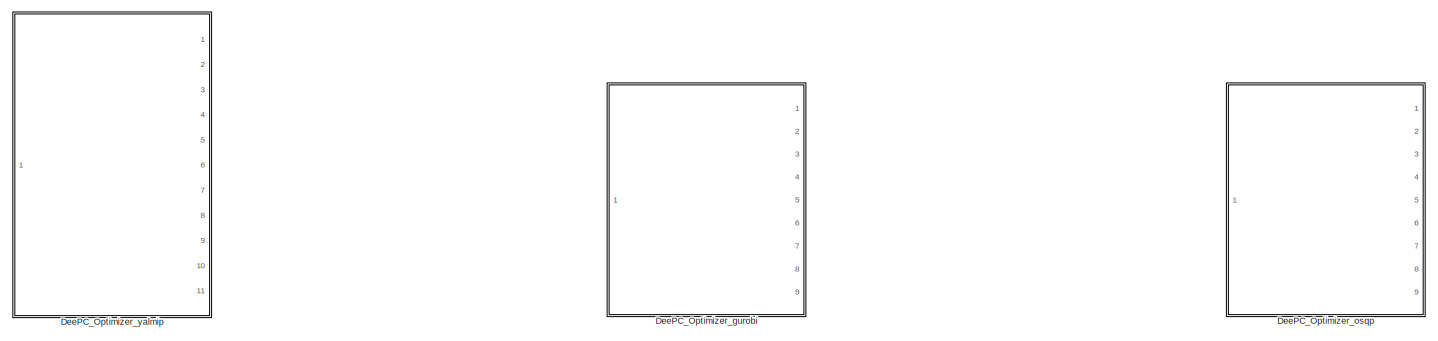
[diagram: root canvas - part 1/3, full width, top band]
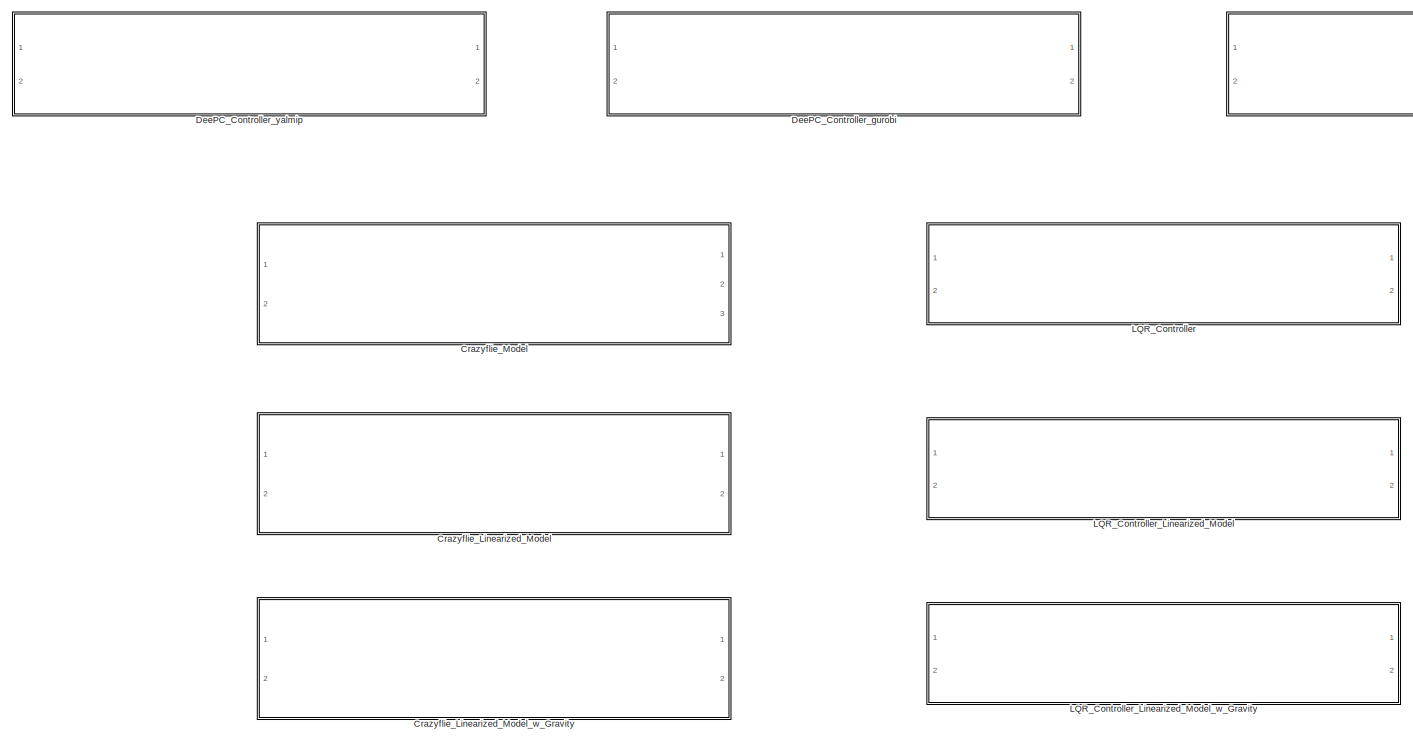
[diagram: root canvas - part 2/3, full width, middle band]
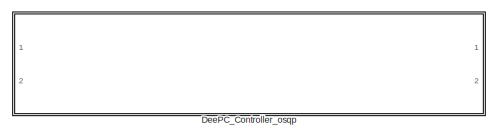
[diagram: root canvas - part 3/3, middle right region]
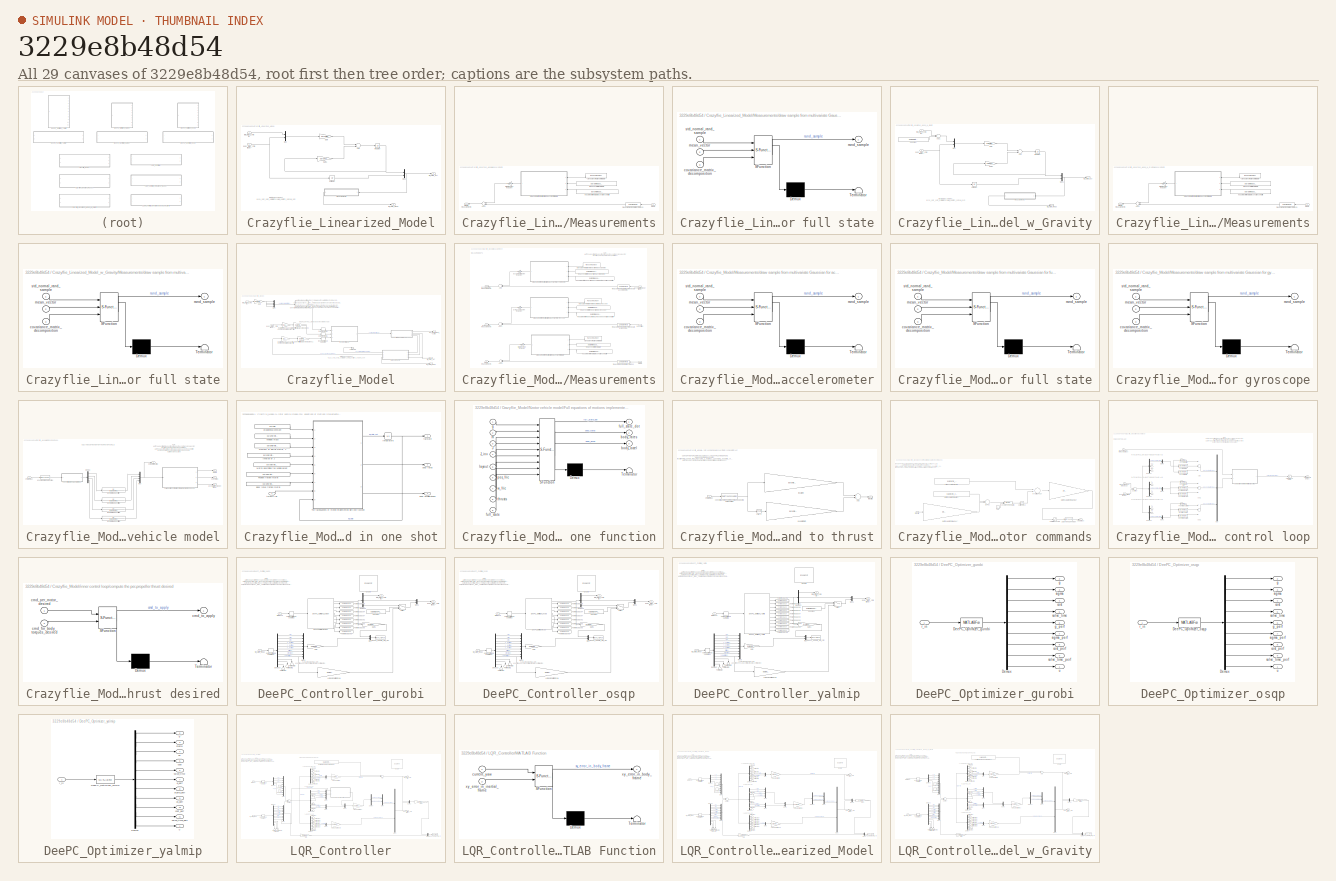
[diagram: thumbnail index - all 29 canvases of the model, root first then tree order]
MODEL slx_3229e8b48d54
KIND library
CONFIG AbsTol = auto
CONFIG EnableMultiTasking = off
CONFIG FixedStep = auto
CONFIG MaxStep = auto
CONFIG MinStep = auto
CONFIG RelTol = 1e-3
CONFIG SampleTimeConstraint = Unconstrained
CONFIG Solver = VariableStepAuto
CONFIG SolverName = VariableStepAuto
CONFIG StartTime = 0.0
CONFIG StopTime = 10.0
BLOCK [SubSystem] Crazyflie_Linearized_Model
  Ports = [2, 2]
  RequestExecContextInheritance = off
BLOCK [Sum] Crazyflie_Linearized_Model/Add
  InputSameDT = off
  OutDataTypeStr = Inherit: Inherit via internal rule
  Ports = [2, 1]
  SaturateOnIntegerOverflow = off
BLOCK [Gain] Crazyflie_Linearized_Model/Gain
  Gain = param.Bc
  Multiplication = Matrix(K*u)
  OutDataTypeStr = Inherit: Inherit via internal rule
  ParamDataTypeStr = Inherit: Inherit via internal rule
  SaturateOnIntegerOverflow = off
BLOCK [Gain] Crazyflie_Linearized_Model/Gain1
  Gain = param.Ac
  Multiplication = Matrix(K*u)
  OutDataTypeStr = Inherit: Inherit via internal rule
  ParamDataTypeStr = Inherit: Inherit via internal rule
  SaturateOnIntegerOverflow = off
BLOCK [Integrator] Crazyflie_Linearized_Model/Integrator
  InitialCondition = param.nrotor_initial_condition(1:9)
  Ports = [1, 1]
BLOCK [SubSystem] Crazyflie_Linearized_Model/Measurements
  Ports = [1, 1]
  RequestExecContextInheritance = off
BLOCK [Constant] Crazyflie_Linearized_Model/Measurements/"square root" of the full state covariance matrix
  Value = param.measurement_noise_full_state_covariance_decomposition
BLOCK [Sum] Crazyflie_Linearized_Model/Measurements/Add2
  InputSameDT = off
  OutDataTypeStr = Inherit: Inherit via internal rule
  Ports = [2, 1]
  SaturateOnIntegerOverflow = off
BLOCK [SubSystem] Crazyflie_Linearized_Model/Measurements/draw sample from multivariate Gaussian for full state
  ErrorFcn = Stateflow.Translate.translate
  PermitHierarchicalResolution = ExplicitOnly
  Ports = [3, 1]
  RequestExecContextInheritance = off
  SFBlockType = MATLAB Function
  TreatAsAtomicUnit = on
BLOCK [Demux] Crazyflie_Linearized_Model/Measurements/draw sample from multivariate Gaussian for full state/ Demux 
  Outputs = 1
  Ports = [1, 1]
BLOCK [S-Function] Crazyflie_Linearized_Model/Measurements/draw sample from multivariate Gaussian for full state/ SFunction 
  EnableBusSupport = off
  FunctionName = sf_sfun
  PortCounts = [3 2]
  Ports = [3, 2]
  SFcnIsStateOwnerBlock = off
  SFunctionDeploymentMode = off
  Tag = Stateflow S-Function Crazyflie_Library 8
BLOCK [Terminator] Crazyflie_Linearized_Model/Measurements/draw sample from multivariate Gaussian for full state/ Terminator 
BLOCK [Inport] Crazyflie_Linearized_Model/Measurements/draw sample from multivariate Gaussian for full state/covariance_matrix_decomposition
  IconDisplay = Port number
  Port = 3
BLOCK [Inport] Crazyflie_Linearized_Model/Measurements/draw sample from multivariate Gaussian for full state/mean_vector
  IconDisplay = Port number
  Port = 2
BLOCK [Outport] Crazyflie_Linearized_Model/Measurements/draw sample from multivariate Gaussian for full state/rand_sample
  IconDisplay = Port number
BLOCK [Inport] Crazyflie_Linearized_Model/Measurements/draw sample from multivariate Gaussian for full state/std_normal_rand_sample
  IconDisplay = Port number
BLOCK [Inport] Crazyflie_Linearized_Model/Measurements/full state
  IconDisplay = Port number
BLOCK [Outport] Crazyflie_Linearized_Model/Measurements/full state measurements
  IconDisplay = Port number
BLOCK [Gain] Crazyflie_Linearized_Model/Measurements/full state noise inclusion
  Gain = param.measurement_noise_full_state
  OutDataTypeStr = Inherit: Inherit via internal rule
  ParamDataTypeStr = Inherit: Inherit via internal rule
  SaturateOnIntegerOverflow = off
BLOCK [Constant] Crazyflie_Linearized_Model/Measurements/mean vector for the full state
  Value = param.measurement_noise_full_state_mean
BLOCK [ZeroOrderHold] Crazyflie_Linearized_Model/Measurements/measurement sampling > for Vicon
  SampleTime = param.sample_time_measurements_full_state
BLOCK [RandomNumber] Crazyflie_Linearized_Model/Measurements/standard normal rand for full state
  Mean = zeros(size(param.measurement_noise_full_state_mean))
  SampleTime = param.sample_time_measurements_full_state
  Seed = param.measurement_noise_full_state_seed
  Variance = ones(size(param.measurement_noise_full_state_mean))
  VectorParams1D = off
BLOCK [Mux] Crazyflie_Linearized_Model/Mux
  DisplayOption = bar
  Inputs = 2
  Ports = [2, 1]
BLOCK [Mux] Crazyflie_Linearized_Model/Mux1
  DisplayOption = bar
  Inputs = 2
  Ports = [2, 1]
BLOCK [UnitDelay] Crazyflie_Linearized_Model/Unit Delay
  HasFrameUpgradeWarning = on
  InitialCondition = param.nrotor_initial_condition(10:12)
  SampleTime = param.sample_time_controller_inner
BLOCK [Inport] Crazyflie_Linearized_Model/body_rates_cmd [rad//s]
  IconDisplay = Port number
  Port = 2
BLOCK [Outport] Crazyflie_Linearized_Model/full_state_act
  IconDisplay = Port number
BLOCK [Outport] Crazyflie_Linearized_Model/full_state_meas
  IconDisplay = Port number
  Port = 2
BLOCK [Inport] Crazyflie_Linearized_Model/total_thrust_cmd [N]
  IconDisplay = Port number
BLOCK [SubSystem] Crazyflie_Linearized_Model_w_Gravity
  Ports = [2, 2]
  RequestExecContextInheritance = off
BLOCK [Sum] Crazyflie_Linearized_Model_w_Gravity/Add
  InputSameDT = off
  OutDataTypeStr = Inherit: Inherit via internal rule
  Ports = [2, 1]
  SaturateOnIntegerOverflow = off
BLOCK [Sum] Crazyflie_Linearized_Model_w_Gravity/Add1
  InputSameDT = off
  Inputs = +-
  OutDataTypeStr = Inherit: Inherit via internal rule
  Ports = [2, 1]
  SaturateOnIntegerOverflow = off
BLOCK [Constant] Crazyflie_Linearized_Model_w_Gravity/Constant
  Value = param.nrotor_vehicle_mass_true * param.g
BLOCK [Gain] Crazyflie_Linearized_Model_w_Gravity/Gain
  Gain = param.Bc
  Multiplication = Matrix(K*u)
  OutDataTypeStr = Inherit: Inherit via internal rule
  ParamDataTypeStr = Inherit: Inherit via internal rule
  SaturateOnIntegerOverflow = off
BLOCK [Gain] Crazyflie_Linearized_Model_w_Gravity/Gain1
  Gain = param.Ac
  Multiplication = Matrix(K*u)
  OutDataTypeStr = Inherit: Inherit via internal rule
  ParamDataTypeStr = Inherit: Inherit via internal rule
  SaturateOnIntegerOverflow = off
BLOCK [Integrator] Crazyflie_Linearized_Model_w_Gravity/Integrator
  InitialCondition = param.nrotor_initial_condition(1:9)
  Ports = [1, 1]
BLOCK [SubSystem] Crazyflie_Linearized_Model_w_Gravity/Measurements
  Ports = [1, 1]
  RequestExecContextInheritance = off
BLOCK [Constant] Crazyflie_Linearized_Model_w_Gravity/Measurements/"square root" of the full state covariance matrix
  Value = param.measurement_noise_full_state_covariance_decomposition
BLOCK [Sum] Crazyflie_Linearized_Model_w_Gravity/Measurements/Add2
  InputSameDT = off
  OutDataTypeStr = Inherit: Inherit via internal rule
  Ports = [2, 1]
  SaturateOnIntegerOverflow = off
BLOCK [SubSystem] Crazyflie_Linearized_Model_w_Gravity/Measurements/draw sample from multivariate Gaussian for full state
  ErrorFcn = Stateflow.Translate.translate
  PermitHierarchicalResolution = ExplicitOnly
  Ports = [3, 1]
  RequestExecContextInheritance = off
  SFBlockType = MATLAB Function
  TreatAsAtomicUnit = on
BLOCK [Demux] Crazyflie_Linearized_Model_w_Gravity/Measurements/draw sample from multivariate Gaussian for full state/ Demux 
  Outputs = 1
  Ports = [1, 1]
BLOCK [S-Function] Crazyflie_Linearized_Model_w_Gravity/Measurements/draw sample from multivariate Gaussian for full state/ SFunction 
  EnableBusSupport = off
  FunctionName = sf_sfun
  PortCounts = [3 2]
  Ports = [3, 2]
  SFcnIsStateOwnerBlock = off
  SFunctionDeploymentMode = off
  Tag = Stateflow S-Function Crazyflie_Library 9
BLOCK [Terminator] Crazyflie_Linearized_Model_w_Gravity/Measurements/draw sample from multivariate Gaussian for full state/ Terminator 
BLOCK [Inport] Crazyflie_Linearized_Model_w_Gravity/Measurements/draw sample from multivariate Gaussian for full state/covariance_matrix_decomposition
  IconDisplay = Port number
  Port = 3
BLOCK [Inport] Crazyflie_Linearized_Model_w_Gravity/Measurements/draw sample from multivariate Gaussian for full state/mean_vector
  IconDisplay = Port number
  Port = 2
BLOCK [Outport] Crazyflie_Linearized_Model_w_Gravity/Measurements/draw sample from multivariate Gaussian for full state/rand_sample
  IconDisplay = Port number
BLOCK [Inport] Crazyflie_Linearized_Model_w_Gravity/Measurements/draw sample from multivariate Gaussian for full state/std_normal_rand_sample
  IconDisplay = Port number
BLOCK [Inport] Crazyflie_Linearized_Model_w_Gravity/Measurements/full state
  IconDisplay = Port number
BLOCK [Outport] Crazyflie_Linearized_Model_w_Gravity/Measurements/full state measurements
  IconDisplay = Port number
BLOCK [Gain] Crazyflie_Linearized_Model_w_Gravity/Measurements/full state noise inclusion
  Gain = param.measurement_noise_full_state
  OutDataTypeStr = Inherit: Inherit via internal rule
  ParamDataTypeStr = Inherit: Inherit via internal rule
  SaturateOnIntegerOverflow = off
BLOCK [Constant] Crazyflie_Linearized_Model_w_Gravity/Measurements/mean vector for the full state
  Value = param.measurement_noise_full_state_mean
BLOCK [ZeroOrderHold] Crazyflie_Linearized_Model_w_Gravity/Measurements/measurement sampling > for Vicon
  SampleTime = param.sample_time_measurements_full_state
BLOCK [RandomNumber] Crazyflie_Linearized_Model_w_Gravity/Measurements/standard normal rand for full state
  Mean = zeros(size(param.measurement_noise_full_state_mean))
  SampleTime = param.sample_time_measurements_full_state
  Seed = param.measurement_noise_full_state_seed
  Variance = ones(size(param.measurement_noise_full_state_mean))
  VectorParams1D = off
BLOCK [Mux] Crazyflie_Linearized_Model_w_Gravity/Mux
  DisplayOption = bar
  Inputs = 2
  Ports = [2, 1]
BLOCK [Mux] Crazyflie_Linearized_Model_w_Gravity/Mux1
  DisplayOption = bar
  Inputs = 2
  Ports = [2, 1]
BLOCK [UnitDelay] Crazyflie_Linearized_Model_w_Gravity/Unit Delay
  HasFrameUpgradeWarning = on
  InitialCondition = param.nrotor_initial_condition(10:12)
  SampleTime = param.sample_time_controller_inner
BLOCK [Inport] Crazyflie_Linearized_Model_w_Gravity/body_rates_cmd [rad//s]
  IconDisplay = Port number
  Port = 2
BLOCK [Outport] Crazyflie_Linearized_Model_w_Gravity/full_state_act
  IconDisplay = Port number
BLOCK [Outport] Crazyflie_Linearized_Model_w_Gravity/full_state_meas
  IconDisplay = Port number
  Port = 2
BLOCK [Inport] Crazyflie_Linearized_Model_w_Gravity/total_thrust_cmd [N]
  IconDisplay = Port number
BLOCK [SubSystem] Crazyflie_Model
  Ports = [2, 3]
  RequestExecContextInheritance = off
BLOCK [Gain] Crazyflie_Model/Convert from radians to degrees
  Gain = param.rad2deg
  OutDataTypeStr = Inherit: Inherit via internal rule
  ParamDataTypeStr = Inherit: Inherit via internal rule
  SaturateOnIntegerOverflow = off
BLOCK [Gain] Crazyflie_Model/Convert from radians to degrees1
  Gain = param.rad2deg
  OutDataTypeStr = Inherit: Inherit via internal rule
  ParamDataTypeStr = Inherit: Inherit via internal rule
  SaturateOnIntegerOverflow = off
BLOCK [Gain] Crazyflie_Model/Gain
  Gain = 1/param.nu
  OutDataTypeStr = Inherit: Inherit via internal rule
  ParamDataTypeStr = Inherit: Inherit via internal rule
  SaturateOnIntegerOverflow = off
BLOCK [SubSystem] Crazyflie_Model/Measurements
  Ports = [3, 3]
  RequestExecContextInheritance = off
BLOCK [Constant] Crazyflie_Model/Measurements/"square root" of the body frame accelerometer covariance matrix
  Value = param.measurement_noise_accelerometer_covariance_decomposition
BLOCK [Constant] Crazyflie_Model/Measurements/"square root" of the body frame gyroscope covariance matrix
  Value = param.measurement_noise_gyroscope_covariance_decomposition
BLOCK [Constant] Crazyflie_Model/Measurements/"square root" of the full state covariance matrix
  Value = param.measurement_noise_full_state_covariance_decomposition
BLOCK [Sum] Crazyflie_Model/Measurements/Add
  InputSameDT = off
  OutDataTypeStr = Inherit: Inherit via internal rule
  Ports = [2, 1]
  SaturateOnIntegerOverflow = off
BLOCK [Sum] Crazyflie_Model/Measurements/Add1
  InputSameDT = off
  OutDataTypeStr = Inherit: Inherit via internal rule
  Ports = [2, 1]
  SaturateOnIntegerOverflow = off
BLOCK [Sum] Crazyflie_Model/Measurements/Add2
  InputSameDT = off
  OutDataTypeStr = Inherit: Inherit via internal rule
  Ports = [2, 1]
  SaturateOnIntegerOverflow = off
BLOCK [Inport] Crazyflie_Model/Measurements/acceleration (body frame)
  IconDisplay = Port number
BLOCK [Outport] Crazyflie_Model/Measurements/accelerometer measurements
  IconDisplay = Port number
BLOCK [Gain] Crazyflie_Model/Measurements/accelometer noise inclusion
  Gain = param.measurement_noise_body_accelerations
  OutDataTypeStr = Inherit: Inherit via internal rule
  ParamDataTypeStr = Inherit: Inherit via internal rule
  SaturateOnIntegerOverflow = off
BLOCK [Inport] Crazyflie_Model/Measurements/body rates
  IconDisplay = Port number
  Port = 2
BLOCK [SubSystem] Crazyflie_Model/Measurements/draw sample from multivariate Gaussian for accelerometer
  ErrorFcn = Stateflow.Translate.translate
  PermitHierarchicalResolution = ExplicitOnly
  Ports = [3, 1]
  RequestExecContextInheritance = off
  SFBlockType = MATLAB Function
  TreatAsAtomicUnit = on
BLOCK [Demux] Crazyflie_Model/Measurements/draw sample from multivariate Gaussian for accelerometer/ Demux 
  Outputs = 1
  Ports = [1, 1]
BLOCK [S-Function] Crazyflie_Model/Measurements/draw sample from multivariate Gaussian for accelerometer/ SFunction 
  EnableBusSupport = off
  FunctionName = sf_sfun
  PortCounts = [3 2]
  Ports = [3, 2]
  SFcnIsStateOwnerBlock = off
  SFunctionDeploymentMode = off
  Tag = Stateflow S-Function Crazyflie_Library 3
BLOCK [Terminator] Crazyflie_Model/Measurements/draw sample from multivariate Gaussian for accelerometer/ Terminator 
BLOCK [Inport] Crazyflie_Model/Measurements/draw sample from multivariate Gaussian for accelerometer/covariance_matrix_decomposition
  IconDisplay = Port number
  Port = 3
BLOCK [Inport] Crazyflie_Model/Measurements/draw sample from multivariate Gaussian for accelerometer/mean_vector
  IconDisplay = Port number
  Port = 2
BLOCK [Outport] Crazyflie_Model/Measurements/draw sample from multivariate Gaussian for accelerometer/rand_sample
  IconDisplay = Port number
BLOCK [Inport] Crazyflie_Model/Measurements/draw sample from multivariate Gaussian for accelerometer/std_normal_rand_sample
  IconDisplay = Port number
BLOCK [SubSystem] Crazyflie_Model/Measurements/draw sample from multivariate Gaussian for full state
  ErrorFcn = Stateflow.Translate.translate
  PermitHierarchicalResolution = ExplicitOnly
  Ports = [3, 1]
  RequestExecContextInheritance = off
  SFBlockType = MATLAB Function
  TreatAsAtomicUnit = on
BLOCK [Demux] Crazyflie_Model/Measurements/draw sample from multivariate Gaussian for full state/ Demux 
  Outputs = 1
  Ports = [1, 1]
BLOCK [S-Function] Crazyflie_Model/Measurements/draw sample from multivariate Gaussian for full state/ SFunction 
  EnableBusSupport = off
  FunctionName = sf_sfun
  PortCounts = [3 2]
  Ports = [3, 2]
  SFcnIsStateOwnerBlock = off
  SFunctionDeploymentMode = off
  Tag = Stateflow S-Function Crazyflie_Library 2
BLOCK [Terminator] Crazyflie_Model/Measurements/draw sample from multivariate Gaussian for full state/ Terminator 
BLOCK [Inport] Crazyflie_Model/Measurements/draw sample from multivariate Gaussian for full state/covariance_matrix_decomposition
  IconDisplay = Port number
  Port = 3
BLOCK [Inport] Crazyflie_Model/Measurements/draw sample from multivariate Gaussian for full state/mean_vector
  IconDisplay = Port number
  Port = 2
BLOCK [Outport] Crazyflie_Model/Measurements/draw sample from multivariate Gaussian for full state/rand_sample
  IconDisplay = Port number
BLOCK [Inport] Crazyflie_Model/Measurements/draw sample from multivariate Gaussian for full state/std_normal_rand_sample
  IconDisplay = Port number
BLOCK [SubSystem] Crazyflie_Model/Measurements/draw sample from multivariate Gaussian for gyroscope
  ErrorFcn = Stateflow.Translate.translate
  PermitHierarchicalResolution = ExplicitOnly
  Ports = [3, 1]
  RequestExecContextInheritance = off
  SFBlockType = MATLAB Function
  TreatAsAtomicUnit = on
BLOCK [Demux] Crazyflie_Model/Measurements/draw sample from multivariate Gaussian for gyroscope/ Demux 
  Outputs = 1
  Ports = [1, 1]
BLOCK [S-Function] Crazyflie_Model/Measurements/draw sample from multivariate Gaussian for gyroscope/ SFunction 
  EnableBusSupport = off
  FunctionName = sf_sfun
  PortCounts = [3 2]
  Ports = [3, 2]
  SFcnIsStateOwnerBlock = off
  SFunctionDeploymentMode = off
  Tag = Stateflow S-Function Crazyflie_Library 1
BLOCK [Terminator] Crazyflie_Model/Measurements/draw sample from multivariate Gaussian for gyroscope/ Terminator 
BLOCK [Inport] Crazyflie_Model/Measurements/draw sample from multivariate Gaussian for gyroscope/covariance_matrix_decomposition
  IconDisplay = Port number
  Port = 3
BLOCK [Inport] Crazyflie_Model/Measurements/draw sample from multivariate Gaussian for gyroscope/mean_vector
  IconDisplay = Port number
  Port = 2
BLOCK [Outport] Crazyflie_Model/Measurements/draw sample from multivariate Gaussian for gyroscope/rand_sample
  IconDisplay = Port number
BLOCK [Inport] Crazyflie_Model/Measurements/draw sample from multivariate Gaussian for gyroscope/std_normal_rand_sample
  IconDisplay = Port number
BLOCK [Inport] Crazyflie_Model/Measurements/full state
  IconDisplay = Port number
  Port = 3
BLOCK [Outport] Crazyflie_Model/Measurements/full state measurements
  IconDisplay = Port number
  Port = 3
BLOCK [Gain] Crazyflie_Model/Measurements/full state noise inclusion
  Gain = param.measurement_noise_full_state
  OutDataTypeStr = Inherit: Inherit via internal rule
  ParamDataTypeStr = Inherit: Inherit via internal rule
  SaturateOnIntegerOverflow = off
BLOCK [Outport] Crazyflie_Model/Measurements/gyroscope measurements
  IconDisplay = Port number
  Port = 2
BLOCK [Gain] Crazyflie_Model/Measurements/gyroscope noise inclusion
  Gain = param.measurement_noise_body_rates
  OutDataTypeStr = Inherit: Inherit via internal rule
  ParamDataTypeStr = Inherit: Inherit via internal rule
  SaturateOnIntegerOverflow = off
BLOCK [Constant] Crazyflie_Model/Measurements/mean vector for the body frame accelerometer
  Value = param.measurement_noise_accelerometer_mean
BLOCK [Constant] Crazyflie_Model/Measurements/mean vector for the body frame gyroscope
  Value = param.measurement_noise_gyroscope_mean
BLOCK [Constant] Crazyflie_Model/Measurements/mean vector for the full state
  Value = param.measurement_noise_full_state_mean
BLOCK [ZeroOrderHold] Crazyflie_Model/Measurements/measurement sampling > for Vicon
  SampleTime = param.sample_time_measurements_full_state
BLOCK [ZeroOrderHold] Crazyflie_Model/Measurements/measurement sampling > for on-board accelerometer
  SampleTime = param.sample_time_measurements_body_accelerations
BLOCK [ZeroOrderHold] Crazyflie_Model/Measurements/measurement sampling > for on-board gyroscope
  SampleTime = param.sample_time_measurements_body_rates
BLOCK [RandomNumber] Crazyflie_Model/Measurements/standard normal rand for body frame accelometer
  Mean = zeros(size(param.measurement_noise_accelerometer_mean))
  SampleTime = param.sample_time_measurements_body_accelerations
  Seed = param.measurement_noise_accelerometer_seed
  Variance = ones(size(param.measurement_noise_accelerometer_mean))
  VectorParams1D = off
BLOCK [RandomNumber] Crazyflie_Model/Measurements/standard normal rand for body frame gyroscope
  Mean = zeros(size(param.measurement_noise_gyroscope_mean))
  SampleTime = param.sample_time_measurements_body_rates
  Seed = param.measurement_noise_gyroscope_seed
  Variance = ones(size(param.measurement_noise_gyroscope_mean))
  VectorParams1D = off
BLOCK [RandomNumber] Crazyflie_Model/Measurements/standard normal rand for full state
  Mean = zeros(size(param.measurement_noise_full_state_mean))
  SampleTime = param.sample_time_measurements_full_state
  Seed = param.measurement_noise_full_state_seed
  Variance = ones(size(param.measurement_noise_full_state_mean))
  VectorParams1D = off
BLOCK [Mux] Crazyflie_Model/Mux
  DisplayOption = bar
  Inputs = param.nu
  Ports = [4, 1]
BLOCK [SubSystem] Crazyflie_Model/N-rotor vehicle model
  Ports = [1, 4]
  RequestExecContextInheritance = off
BLOCK [TransferFcn] Crazyflie_Model/N-rotor vehicle model/DC motor low pass filter
  Denominator = [param.nrotor_tau_M 1]
BLOCK [TransferFcn] Crazyflie_Model/N-rotor vehicle model/DC motor low pass filter1
  Denominator = [param.nrotor_tau_M 1]
BLOCK [TransferFcn] Crazyflie_Model/N-rotor vehicle model/DC motor low pass filter2
  Denominator = [param.nrotor_tau_M 1]
BLOCK [TransferFcn] Crazyflie_Model/N-rotor vehicle model/DC motor low pass filter3
  Denominator = [param.nrotor_tau_M 1]
BLOCK [Demux] Crazyflie_Model/N-rotor vehicle model/Demux
  DisplayOption = bar
  Ports = [1, 4]
BLOCK [SubSystem] Crazyflie_Model/N-rotor vehicle model/Full equations of motions implemented in one shot
  Ports = [1, 3]
  RequestExecContextInheritance = off
BLOCK [Constant] Crazyflie_Model/N-rotor vehicle model/Full equations of motions implemented in one shot/Body rates friction matrix
  Value = param.nrotor_vehicle_body_rates_friction
BLOCK [Integrator] Crazyflie_Model/N-rotor vehicle model/Full equations of motions implemented in one shot/Integrator5
  InitialCondition = param.nrotor_initial_condition
  Ports = [1, 1]
BLOCK [Constant] Crazyflie_Model/N-rotor vehicle model/Full equations of motions implemented in one shot/Inverse of J
  Value = param.nrotor_vehicle_inertia_inverse
BLOCK [Constant] Crazyflie_Model/N-rotor vehicle model/Full equations of motions implemented in one shot/Matrix describing the vehicle layout
  Value = param.nrotor_vehicle_layout_true
BLOCK [Constant] Crazyflie_Model/N-rotor vehicle model/Full equations of motions implemented in one shot/Moment of inertia matrix, J
  Value = param.nrotor_vehicle_inertia
BLOCK [Constant] Crazyflie_Model/N-rotor vehicle model/Full equations of motions implemented in one shot/Position friction matrix
  Value = param.nrotor_vehicle_position_friction
BLOCK [SubSystem] Crazyflie_Model/N-rotor vehicle model/Full equations of motions implemented in one shot/The full equations of motion implemented with one function
  ErrorFcn = Stateflow.Translate.translate
  PermitHierarchicalResolution = ExplicitOnly
  Ports = [9, 3]
  RequestExecContextInheritance = off
  SFBlockType = MATLAB Function
  TreatAsAtomicUnit = on
BLOCK [Demux] Crazyflie_Model/N-rotor vehicle model/Full equations of motions implemented in one shot/The full equations of motion implemented with one function/ Demux 
  Outputs = 1
  Ports = [1, 1]
BLOCK [S-Function] Crazyflie_Model/N-rotor vehicle model/Full equations of motions implemented in one shot/The full equations of motion implemented with one function/ SFunction 
  EnableBusSupport = off
  FunctionName = sf_sfun
  PortCounts = [9 4]
  Ports = [9, 4]
  SFcnIsStateOwnerBlock = off
  SFunctionDeploymentMode = off
  Tag = Stateflow S-Function Crazyflie_Library 5
BLOCK [Terminator] Crazyflie_Model/N-rotor vehicle model/Full equations of motions implemented in one shot/The full equations of motion implemented with one function/ Terminator 
BLOCK [Inport] Crazyflie_Model/N-rotor vehicle model/Full equations of motions implemented in one shot/The full equations of motion implemented with one function/J
  IconDisplay = Port number
  Port = 3
BLOCK [Inport] Crazyflie_Model/N-rotor vehicle model/Full equations of motions implemented in one shot/The full equations of motion implemented with one function/J_inv
  IconDisplay = Port number
  Port = 4
BLOCK [Outport] Crazyflie_Model/N-rotor vehicle model/Full equations of motions implemented in one shot/The full equations of motion implemented with one function/body_accel
  IconDisplay = Port number
  Port = 3
BLOCK [Outport] Crazyflie_Model/N-rotor vehicle model/Full equations of motions implemented in one shot/The full equations of motion implemented with one function/body_rates
  IconDisplay = Port number
  Port = 2
BLOCK [Inport] Crazyflie_Model/N-rotor vehicle model/Full equations of motions implemented in one shot/The full equations of motion implemented with one function/full_state
  IconDisplay = Port number
  Port = 9
BLOCK [Outport] Crazyflie_Model/N-rotor vehicle model/Full equations of motions implemented in one shot/The full equations of motion implemented with one function/full_state_dot
  IconDisplay = Port number
BLOCK [Inport] Crazyflie_Model/N-rotor vehicle model/Full equations of motions implemented in one shot/The full equations of motion implemented with one function/g
  IconDisplay = Port number
BLOCK [Inport] Crazyflie_Model/N-rotor vehicle model/Full equations of motions implemented in one shot/The full equations of motion implemented with one function/layout
  IconDisplay = Port number
  Port = 5
BLOCK [Inport] Crazyflie_Model/N-rotor vehicle model/Full equations of motions implemented in one shot/The full equations of motion implemented with one function/m
  IconDisplay = Port number
  Port = 2
BLOCK [Inport] Crazyflie_Model/N-rotor vehicle model/Full equations of motions implemented in one shot/The full equations of motion implemented with one function/pos_fric
  IconDisplay = Port number
  Port = 6
BLOCK [Inport] Crazyflie_Model/N-rotor vehicle model/Full equations of motions implemented in one shot/The full equations of motion implemented with one function/thrusts
  IconDisplay = Port number
  Port = 8
BLOCK [Inport] Crazyflie_Model/N-rotor vehicle model/Full equations of motions implemented in one shot/The full equations of motion implemented with one function/w_fric
  IconDisplay = Port number
  Port = 7
BLOCK [Outport] Crazyflie_Model/N-rotor vehicle model/Full equations of motions implemented in one shot/body accellerations
  IconDisplay = Port number
  Port = 3
BLOCK [Outport] Crazyflie_Model/N-rotor vehicle model/Full equations of motions implemented in one shot/body rates
  IconDisplay = Port number
  Port = 2
BLOCK [Outport] Crazyflie_Model/N-rotor vehicle model/Full equations of motions implemented in one shot/full state
  IconDisplay = Port number
BLOCK [Constant] Crazyflie_Model/N-rotor vehicle model/Full equations of motions implemented in one shot/graviational constant
  Value = param.g
BLOCK [Inport] Crazyflie_Model/N-rotor vehicle model/Full equations of motions implemented in one shot/thrusts [N]
  IconDisplay = Port number
BLOCK [Constant] Crazyflie_Model/N-rotor vehicle model/Full equations of motions implemented in one shot/vehicle's mass
  Value = param.nrotor_vehicle_mass_true
BLOCK [Mux] Crazyflie_Model/N-rotor vehicle model/Mux
  DisplayOption = bar
  Ports = [4, 1]
BLOCK [Outport] Crazyflie_Model/N-rotor vehicle model/accelerations (body frame)
  IconDisplay = Port number
  Port = 4
BLOCK [Outport] Crazyflie_Model/N-rotor vehicle model/body rates
  IconDisplay = Port number
  Port = 3
BLOCK [Inport] Crazyflie_Model/N-rotor vehicle model/cmd [uint16]
  IconDisplay = Port number
BLOCK [SubSystem] Crazyflie_Model/N-rotor vehicle model/convert motor comand to thrust
  Ports = [1, 1]
  RequestExecContextInheritance = off
BLOCK [Sum] Crazyflie_Model/N-rotor vehicle model/convert motor comand to thrust/Add
  InputSameDT = off
  OutDataTypeStr = Inherit: Inherit via internal rule
  Ports = [2, 1]
  SaturateOnIntegerOverflow = off
BLOCK [Inport] Crazyflie_Model/N-rotor vehicle model/convert motor comand to thrust/cmd [uint16]
  IconDisplay = Port number
BLOCK [Math] Crazyflie_Model/N-rotor vehicle model/convert motor comand to thrust/cmd^2
  Operator = square
  Ports = [1, 1]
BLOCK [DataTypeConversion] Crazyflie_Model/N-rotor vehicle model/convert motor comand to thrust/convert back to double to avoid unexpected data casting
  OutDataTypeStr = double
  RndMeth = Floor
  SaturateOnIntegerOverflow = off
BLOCK [Gain] Crazyflie_Model/N-rotor vehicle model/convert motor comand to thrust/linear term
  Gain = param.nrotor_vehicle_thrust_max .* param.cmd_2_newtons_conversion_linear_coefficient
  OutDataTypeStr = Inherit: Inherit via internal rule
  ParamDataTypeStr = Inherit: Inherit via internal rule
  SaturateOnIntegerOverflow = off
BLOCK [Gain] Crazyflie_Model/N-rotor vehicle model/convert motor comand to thrust/quadratic term
  Gain = param.nrotor_vehicle_thrust_max .* param.cmd_2_newtons_conversion_quadratic_coefficient
  OutDataTypeStr = Inherit: Inherit via internal rule
  ParamDataTypeStr = Inherit: Inherit via internal rule
  SaturateOnIntegerOverflow = off
BLOCK [Outport] Crazyflie_Model/N-rotor vehicle model/convert motor comand to thrust/thrust [N]
  IconDisplay = Port number
BLOCK [DataTypeConversion] Crazyflie_Model/N-rotor vehicle model/ensure data type is unit16
  OutDataTypeStr = uint16
  RndMeth = Floor
  SaturateOnIntegerOverflow = off
BLOCK [Outport] Crazyflie_Model/N-rotor vehicle model/full state
  IconDisplay = Port number
  Port = 2
BLOCK [Outport] Crazyflie_Model/N-rotor vehicle model/per motor thrust [N]
  IconDisplay = Port number
BLOCK [Gain] Crazyflie_Model/Rotate into axis convention used on-board the Crazyflie
  Gain = [1,-1,-1]
  OutDataTypeStr = Inherit: Inherit via internal rule
  ParamDataTypeStr = Inherit: Inherit via internal rule
  SaturateOnIntegerOverflow = off
BLOCK [Gain] Crazyflie_Model/Rotate into axis convention used on-board the Crazyflie1
  Gain = [1,-1,-1]
  OutDataTypeStr = Inherit: Inherit via internal rule
  ParamDataTypeStr = Inherit: Inherit via internal rule
  SaturateOnIntegerOverflow = off
BLOCK [Terminator] Crazyflie_Model/Terminator1
BLOCK [ZeroOrderHold] Crazyflie_Model/Zero-Order Hold1
  SampleTime = param.sample_time_controller_inner
BLOCK [ZeroOrderHold] Crazyflie_Model/Zero-Order Hold2
  SampleTime = param.sample_time_controller_inner
BLOCK [Inport] Crazyflie_Model/body_rates_cmd [rad//s]
  IconDisplay = Port number
  Port = 2
BLOCK [SubSystem] Crazyflie_Model/convert thrust [N] to [uint16] motor commands
  Ports = [1, 1]
  RequestExecContextInheritance = off
BLOCK [Sum] Crazyflie_Model/convert thrust [N] to [uint16] motor commands/-b + sqrt(b^2 - 4ac))
  InputSameDT = off
  OutDataTypeStr = Inherit: Inherit via internal rule
  Ports = [2, 1]
  SaturateOnIntegerOverflow = off
BLOCK [DataTypeConversion] Crazyflie_Model/convert thrust [N] to [uint16] motor commands/Data Type Conversion
  OutDataTypeStr = uint16
  RndMeth = Floor
  SaturateOnIntegerOverflow = off
BLOCK [Saturate] Crazyflie_Model/convert thrust [N] to [uint16] motor commands/Saturation on cmd
  InputPortMap = u0
  LowerLimit = param.cmd_min
  Ports = [1, 1]
  UpperLimit = param.cmd_max
  ZeroCross = off
BLOCK [Sum] Crazyflie_Model/convert thrust [N] to [uint16] motor commands/b^2 - 4ac
  InputSameDT = off
  Inputs = +-
  OutDataTypeStr = Inherit: Inherit via internal rule
  Ports = [2, 1]
  SaturateOnIntegerOverflow = off
BLOCK [Outport] Crazyflie_Model/convert thrust [N] to [uint16] motor commands/cmd [uint16]
  IconDisplay = Port number
BLOCK [MinMax] Crazyflie_Model/convert thrust [N] to [uint16] motor commands/ensure non-negative
  Function = max
  InputSameDT = off
  Inputs = 2
  Ports = [2, 1]
  SaturateOnIntegerOverflow = off
BLOCK [Constant] Crazyflie_Model/convert thrust [N] to [uint16] motor commands/part of quadratic formula: "-b"
  Value = -param.cmd_2_newtons_conversion_linear_coefficient
BLOCK [Gain] Crazyflie_Model/convert thrust [N] to [uint16] motor commands/part of quadratic formula: "1//(2a)"
  Gain = 1 / ( 2 * param.cmd_2_newtons_conversion_quadratic_coefficient )
  OutDataTypeStr = Inherit: Inherit via internal rule
  ParamDataTypeStr = Inherit: Inherit via internal rule
  SaturateOnIntegerOverflow = off
BLOCK [Gain] Crazyflie_Model/convert thrust [N] to [uint16] motor commands/part of quadratic formula: "4ac"
  Gain = -(4 * param.cmd_2_newtons_conversion_quadratic_coefficient) ./ param.nrotor_vehicle_thrust_max
  OutDataTypeStr = Inherit: Inherit via internal rule
  ParamDataTypeStr = Inherit: Inherit via internal rule
  SaturateOnIntegerOverflow = off
BLOCK [Constant] Crazyflie_Model/convert thrust [N] to [uint16] motor commands/part of quadratic formula: "b^2"
  Value = param.cmd_2_newtons_conversion_linear_coefficient^2
BLOCK [Sqrt] Crazyflie_Model/convert thrust [N] to [uint16] motor commands/sqrt(b^2 - 4ac))
BLOCK [Inport] Crazyflie_Model/convert thrust [N] to [uint16] motor commands/thrust [N]
  IconDisplay = Port number
BLOCK [Constant] Crazyflie_Model/convert thrust [N] to [uint16] motor commands/zero
  Value = 0
BLOCK [Outport] Crazyflie_Model/full_state_act
  IconDisplay = Port number
  Port = 2
BLOCK [Outport] Crazyflie_Model/full_state_meas
  IconDisplay = Port number
  Port = 3
BLOCK [SubSystem] Crazyflie_Model/inner control loop
  Ports = [3, 1]
  RequestExecContextInheritance = off
BLOCK [ZeroOrderHold] Crazyflie_Model/inner control loop sampling
  SampleTime = param.sample_time_controller_inner
BLOCK [Sum] Crazyflie_Model/inner control loop/Add
  InputSameDT = off
  Inputs = +++
  OutDataTypeStr = Inherit: Inherit via internal rule
  Ports = [3, 1]
  SaturateOnIntegerOverflow = off
BLOCK [Sum] Crazyflie_Model/inner control loop/Add1
  InputSameDT = off
  Inputs = +++
  OutDataTypeStr = Inherit: Inherit via internal rule
  Ports = [3, 1]
  SaturateOnIntegerOverflow = off
BLOCK [Sum] Crazyflie_Model/inner control loop/Add2
  InputSameDT = off
  Inputs = +++
  OutDataTypeStr = Inherit: Inherit via internal rule
  Ports = [3, 1]
  SaturateOnIntegerOverflow = off
BLOCK [Reference] Crazyflie_Model/inner control loop/D-control for pitch rate  REF=simulink/Discrete/Discrete Derivative
  Ports = [1, 1]
  SourceBlock = simulink/Discrete/Discrete Derivative
  SourceProductBaseCode = SL
  SourceProductName = Simulink
  SourceType = Discrete Derivative
BLOCK [Reference] Crazyflie_Model/inner control loop/D-control for roll rate  REF=simulink/Discrete/Discrete Derivative
  Ports = [1, 1]
  SourceBlock = simulink/Discrete/Discrete Derivative
  SourceProductBaseCode = SL
  SourceProductName = Simulink
  SourceType = Discrete Derivative
BLOCK [Reference] Crazyflie_Model/inner control loop/D-control for yaw rate  REF=simulink/Discrete/Discrete Derivative
  Ports = [1, 1]
  SourceBlock = simulink/Discrete/Discrete Derivative
  SourceProductBaseCode = SL
  SourceProductName = Simulink
  SourceType = Discrete Derivative
BLOCK [Demux] Crazyflie_Model/inner control loop/Demux1
  DisplayOption = bar
  Outputs = 3
  Ports = [1, 3]
BLOCK [Demux] Crazyflie_Model/inner control loop/Demux2
  DisplayOption = bar
  Outputs = 3
  Ports = [1, 3]
BLOCK [Demux] Crazyflie_Model/inner control loop/Demux7
  DisplayOption = bar
  Outputs = 3
  Ports = [1, 3]
BLOCK [DiscreteIntegrator] Crazyflie_Model/inner control loop/I-control for pitch rate2
  ICPrevOutput = DiscIntNeverNeededParam
  ICPrevScaledInput = DiscIntNeverNeededParam
  InitialConditionSetting = Auto
  LimitOutput = on
  LowerSaturationLimit = -param.pid_y_body_rate_integrator_limit
  Ports = [1, 1]
  SampleTime = -1
  UpperSaturationLimit = param.pid_y_body_rate_integrator_limit
  gainval = param.pid_y_body_rate_ki
BLOCK [DiscreteIntegrator] Crazyflie_Model/inner control loop/I-control for roll rate
  ICPrevOutput = DiscIntNeverNeededParam
  ICPrevScaledInput = DiscIntNeverNeededParam
  InitialConditionSetting = Auto
  LimitOutput = on
  LowerSaturationLimit = -param.pid_x_body_rate_integrator_limit
  Ports = [1, 1]
  SampleTime = -1
  UpperSaturationLimit = param.pid_x_body_rate_integrator_limit
  gainval = param.pid_x_body_rate_ki
BLOCK [DiscreteIntegrator] Crazyflie_Model/inner control loop/I-control for yaw rate
  ICPrevOutput = DiscIntNeverNeededParam
  ICPrevScaledInput = DiscIntNeverNeededParam
  InitialConditionSetting = Auto
  LimitOutput = on
  LowerSaturationLimit = -param.pid_x_body_rate_integrator_limit
  Ports = [1, 1]
  SampleTime = -1
  UpperSaturationLimit = param.pid_x_body_rate_integrator_limit
  gainval = param.pid_z_body_rate_ki
BLOCK [Mux] Crazyflie_Model/inner control loop/Mux
  DisplayOption = bar
  Inputs = 3
  Ports = [3, 1]
BLOCK [Mux] Crazyflie_Model/inner control loop/Mux1
  DisplayOption = bar
  Inputs = 1
  Ports = [1, 1]
BLOCK [Mux] Crazyflie_Model/inner control loop/Mux2
  DisplayOption = bar
  Inputs = 1
  Ports = [1, 1]
BLOCK [Mux] Crazyflie_Model/inner control loop/Mux6
  DisplayOption = bar
  Inputs = 1
  Ports = [1, 1]
BLOCK [Gain] Crazyflie_Model/inner control loop/P-control for pitch rate
  Gain = param.pid_y_body_rate_kp
  OutDataTypeStr = Inherit: Inherit via internal rule
  ParamDataTypeStr = Inherit: Inherit via internal rule
  SaturateOnIntegerOverflow = off
BLOCK [Gain] Crazyflie_Model/inner control loop/P-control for roll rate
  Gain = param.pid_x_body_rate_kp
  OutDataTypeStr = Inherit: Inherit via internal rule
  ParamDataTypeStr = Inherit: Inherit via internal rule
  SaturateOnIntegerOverflow = off
BLOCK [Gain] Crazyflie_Model/inner control loop/P-control for yaw rate
  Gain = param.pid_z_body_rate_kp
  OutDataTypeStr = Inherit: Inherit via internal rule
  ParamDataTypeStr = Inherit: Inherit via internal rule
  SaturateOnIntegerOverflow = off
BLOCK [Saturate] Crazyflie_Model/inner control loop/Saturation on uint16
  InputPortMap = u0
  LowerLimit = param.cmd_min
  Ports = [1, 1]
  UpperLimit = param.cmd_max
  ZeroCross = off
BLOCK [Sum] Crazyflie_Model/inner control loop/Subtract
  InputSameDT = off
  Inputs = +-
  OutDataTypeStr = Inherit: Inherit via internal rule
  Ports = [2, 1]
  SaturateOnIntegerOverflow = off
BLOCK [Terminator] Crazyflie_Model/inner control loop/T1
BLOCK [Terminator] Crazyflie_Model/inner control loop/T18
BLOCK [Terminator] Crazyflie_Model/inner control loop/T2
BLOCK [Terminator] Crazyflie_Model/inner control loop/T23
BLOCK [Terminator] Crazyflie_Model/inner control loop/T3
BLOCK [Terminator] Crazyflie_Model/inner control loop/T5
BLOCK [Inport] Crazyflie_Model/inner control loop/body rates estimate [deg//s]
  IconDisplay = Port number
  Port = 3
BLOCK [SubSystem] Crazyflie_Model/inner control loop/compute the per-propeller thrust desired
  ErrorFcn = Stateflow.Translate.translate
  PermitHierarchicalResolution = ExplicitOnly
  Ports = [2, 1]
  RequestExecContextInheritance = off
  SFBlockType = MATLAB Function
  TreatAsAtomicUnit = on
BLOCK [Demux] Crazyflie_Model/inner control loop/compute the per-propeller thrust desired/ Demux 
  Outputs = 1
  Ports = [1, 1]
BLOCK [S-Function] Crazyflie_Model/inner control loop/compute the per-propeller thrust desired/ SFunction 
  EnableBusSupport = off
  FunctionName = sf_sfun
  PortCounts = [2 2]
  Ports = [2, 2]
  SFcnIsStateOwnerBlock = off
  SFunctionDeploymentMode = off
  Tag = Stateflow S-Function Crazyflie_Library 4
BLOCK [Terminator] Crazyflie_Model/inner control loop/compute the per-propeller thrust desired/ Terminator 
BLOCK [Inport] Crazyflie_Model/inner control loop/compute the per-propeller thrust desired/cmd_for_body_torques_desired
  IconDisplay = Port number
  Port = 2
BLOCK [Inport] Crazyflie_Model/inner control loop/compute the per-propeller thrust desired/cmd_per_motor_desired
  IconDisplay = Port number
BLOCK [Outport] Crazyflie_Model/inner control loop/compute the per-propeller thrust desired/cmd_to_apply
  IconDisplay = Port number
BLOCK [Outport] Crazyflie_Model/inner control loop/per motor cmd [uint16]
  IconDisplay = Port number
BLOCK [Inport] Crazyflie_Model/inner control loop/requested body rates [deg//s]
  IconDisplay = Port number
  Port = 2
BLOCK [Inport] Crazyflie_Model/inner control loop/requested per motor comand [uint16]
  IconDisplay = Port number
BLOCK [Outport] Crazyflie_Model/per_motor_thrust_act [N] 
  IconDisplay = Port number
BLOCK [Inport] Crazyflie_Model/total_thrust_cmd [N]
  IconDisplay = Port number
BLOCK [SubSystem] DeePC_Controller_gurobi
  Ports = [2, 2, 1]
  RequestExecContextInheritance = off
BLOCK [Constant] DeePC_Controller_gurobi/Constant
  Value = param.DeePC_yaw_control
BLOCK [Reference] DeePC_Controller_gurobi/DeePC Optimizer gurobi  REF=$bdroot/DeePC_Optimizer_gurobi
  Ports = [1, 9]
  SourceBlock = $bdroot/DeePC_Optimizer_gurobi
  SourceType = SubSystem
BLOCK [MATLABFcn] DeePC_Controller_gurobi/DeePC_update_uini_yini
  MATLABFcn = DeePC_update_uini_yini
  OutputDimensions = 0
  Ports = [1]
BLOCK [Demux] DeePC_Controller_gurobi/Demux2
  DisplayOption = bar
  Outputs = [1 2 1]
  Ports = [1, 3]
BLOCK [Demux] DeePC_Controller_gurobi/Demux3
  DisplayOption = bar
  Outputs = 12
  Ports = [1, 12]
BLOCK [EnablePort] DeePC_Controller_gurobi/Enable
  Ports = []
BLOCK [Gain] DeePC_Controller_gurobi/Gain
  Gain = param.Cd
  Multiplication = Matrix(K*u)
  OutDataTypeStr = Inherit: Inherit via internal rule
  ParamDataTypeStr = Inherit: Inherit via internal rule
  SaturateOnIntegerOverflow = off
BLOCK [Gain] DeePC_Controller_gurobi/Gain1
  Gain = eye(param.m, 4)
  Multiplication = Matrix(K*u)
  OutDataTypeStr = Inherit: Inherit via internal rule
  ParamDataTypeStr = Inherit: Inherit via internal rule
  SaturateOnIntegerOverflow = off
BLOCK [Gain] DeePC_Controller_gurobi/LQR gain matrix for yaw
  Gain = -param.K_lqr_outer_loop(4,9)
  Multiplication = Matrix(K*u)
  OutDataTypeStr = Inherit: Inherit via internal rule
  ParamDataTypeStr = Inherit: Inherit via internal rule
  SaturateOnIntegerOverflow = off
BLOCK [Mux] DeePC_Controller_gurobi/Mux
  DisplayOption = bar
  Inputs = 2
  Ports = [2, 1]
BLOCK [Mux] DeePC_Controller_gurobi/Mux1
  DisplayOption = bar
  Inputs = [2 1]
  Ports = [2, 1]
BLOCK [Mux] DeePC_Controller_gurobi/Mux3
  DisplayOption = bar
  Inputs = 9
  Ports = [9, 1]
BLOCK [Switch] DeePC_Controller_gurobi/Switch
  Criteria = u2 ~= 0
  InputSameDT = off
  SaturateOnIntegerOverflow = off
BLOCK [Terminator] DeePC_Controller_gurobi/Terminator
BLOCK [Terminator] DeePC_Controller_gurobi/Terminator1
BLOCK [Terminator] DeePC_Controller_gurobi/Terminator2
BLOCK [ToWorkspace] DeePC_Controller_gurobi/To Workspace1
  FixptAsFi = on
  MaxDataPoints = inf
  Ports = [1]
  SampleTime = -1
  VariableName = sigma_out
BLOCK [ToWorkspace] DeePC_Controller_gurobi/To Workspace2
  FixptAsFi = on
  MaxDataPoints = inf
  Ports = [1]
  SampleTime = -1
  VariableName = g_perf_out
BLOCK [ToWorkspace] DeePC_Controller_gurobi/To Workspace3
  FixptAsFi = on
  MaxDataPoints = inf
  Ports = [1]
  SampleTime = -1
  VariableName = sigma_perf_out
BLOCK [ToWorkspace] DeePC_Controller_gurobi/To Workspace4
  FixptAsFi = on
  MaxDataPoints = inf
  Ports = [1]
  SampleTime = -1
  VariableName = cost_out
BLOCK [ToWorkspace] DeePC_Controller_gurobi/To Workspace5
  FixptAsFi = on
  MaxDataPoints = inf
  Ports = [1]
  SampleTime = -1
  VariableName = g_out
BLOCK [ToWorkspace] DeePC_Controller_gurobi/To Workspace6
  FixptAsFi = on
  MaxDataPoints = inf
  Ports = [1]
  SampleTime = -1
  VariableName = cost_perf_out
BLOCK [ToWorkspace] DeePC_Controller_gurobi/To Workspace7
  FixptAsFi = on
  MaxDataPoints = inf
  Ports = [1]
  SampleTime = -1
  VariableName = solve_time_out
BLOCK [ToWorkspace] DeePC_Controller_gurobi/To Workspace8
  FixptAsFi = on
  MaxDataPoints = inf
  Ports = [1]
  SampleTime = -1
  VariableName = solve_time_perf_out
BLOCK [Outport] DeePC_Controller_gurobi/body_rates_cmd [rad//s]
  IconDisplay = Port number
  Port = 2
BLOCK [Inport] DeePC_Controller_gurobi/full_state_meas
  IconDisplay = Port number
  Port = 2
BLOCK [ZeroOrderHold] DeePC_Controller_gurobi/outer control loop sampling
  SampleTime = param.sample_time_controller_outer
BLOCK [ZeroOrderHold] DeePC_Controller_gurobi/outer control loop sampling1
  SampleTime = param.sample_time_controller_outer
BLOCK [Inport] DeePC_Controller_gurobi/reference
  IconDisplay = Port number
BLOCK [Outport] DeePC_Controller_gurobi/total_thrust_cmd [N]
  IconDisplay = Port number
BLOCK [SubSystem] DeePC_Controller_osqp
  Ports = [2, 2, 1]
  RequestExecContextInheritance = off
BLOCK [Constant] DeePC_Controller_osqp/Constant
  Value = param.DeePC_yaw_control
BLOCK [Reference] DeePC_Controller_osqp/DeePC Optimizer osqp  REF=$bdroot/DeePC_Optimizer_osqp
  Ports = [1, 9]
  SourceBlock = $bdroot/DeePC_Optimizer_osqp
  SourceType = SubSystem
BLOCK [MATLABFcn] DeePC_Controller_osqp/DeePC_update_uini_yini
  MATLABFcn = DeePC_update_uini_yini
  OutputDimensions = 0
  Ports = [1]
BLOCK [Demux] DeePC_Controller_osqp/Demux2
  DisplayOption = bar
  Outputs = [1 2 1]
  Ports = [1, 3]
BLOCK [Demux] DeePC_Controller_osqp/Demux3
  DisplayOption = bar
  Outputs = 12
  Ports = [1, 12]
BLOCK [EnablePort] DeePC_Controller_osqp/Enable
  Ports = []
BLOCK [Gain] DeePC_Controller_osqp/Gain
  Gain = param.Cd
  Multiplication = Matrix(K*u)
  OutDataTypeStr = Inherit: Inherit via internal rule
  ParamDataTypeStr = Inherit: Inherit via internal rule
  SaturateOnIntegerOverflow = off
BLOCK [Gain] DeePC_Controller_osqp/Gain1
  Gain = eye(param.m, 4)
  Multiplication = Matrix(K*u)
  OutDataTypeStr = Inherit: Inherit via internal rule
  ParamDataTypeStr = Inherit: Inherit via internal rule
  SaturateOnIntegerOverflow = off
BLOCK [Gain] DeePC_Controller_osqp/LQR gain matrix for yaw
  Gain = -param.K_lqr_outer_loop(4,9)
  Multiplication = Matrix(K*u)
  OutDataTypeStr = Inherit: Inherit via internal rule
  ParamDataTypeStr = Inherit: Inherit via internal rule
  SaturateOnIntegerOverflow = off
BLOCK [Mux] DeePC_Controller_osqp/Mux
  DisplayOption = bar
  Inputs = 2
  Ports = [2, 1]
BLOCK [Mux] DeePC_Controller_osqp/Mux1
  DisplayOption = bar
  Inputs = [2 1]
  Ports = [2, 1]
BLOCK [Mux] DeePC_Controller_osqp/Mux3
  DisplayOption = bar
  Inputs = 9
  Ports = [9, 1]
BLOCK [Switch] DeePC_Controller_osqp/Switch
  Criteria = u2 ~= 0
  InputSameDT = off
  SaturateOnIntegerOverflow = off
BLOCK [Terminator] DeePC_Controller_osqp/Terminator
BLOCK [Terminator] DeePC_Controller_osqp/Terminator1
BLOCK [Terminator] DeePC_Controller_osqp/Terminator2
BLOCK [ToWorkspace] DeePC_Controller_osqp/To Workspace1
  FixptAsFi = on
  MaxDataPoints = inf
  Ports = [1]
  SampleTime = -1
  VariableName = sigma_out
BLOCK [ToWorkspace] DeePC_Controller_osqp/To Workspace2
  FixptAsFi = on
  MaxDataPoints = inf
  Ports = [1]
  SampleTime = -1
  VariableName = g_perf_out
BLOCK [ToWorkspace] DeePC_Controller_osqp/To Workspace3
  FixptAsFi = on
  MaxDataPoints = inf
  Ports = [1]
  SampleTime = -1
  VariableName = sigma_perf_out
BLOCK [ToWorkspace] DeePC_Controller_osqp/To Workspace4
  FixptAsFi = on
  MaxDataPoints = inf
  Ports = [1]
  SampleTime = -1
  VariableName = cost_out
BLOCK [ToWorkspace] DeePC_Controller_osqp/To Workspace5
  FixptAsFi = on
  MaxDataPoints = inf
  Ports = [1]
  SampleTime = -1
  VariableName = g_out
BLOCK [ToWorkspace] DeePC_Controller_osqp/To Workspace6
  FixptAsFi = on
  MaxDataPoints = inf
  Ports = [1]
  SampleTime = -1
  VariableName = cost_perf_out
BLOCK [ToWorkspace] DeePC_Controller_osqp/To Workspace7
  FixptAsFi = on
  MaxDataPoints = inf
  Ports = [1]
  SampleTime = -1
  VariableName = solve_time_out
BLOCK [ToWorkspace] DeePC_Controller_osqp/To Workspace8
  FixptAsFi = on
  MaxDataPoints = inf
  Ports = [1]
  SampleTime = -1
  VariableName = solve_time_perf_out
BLOCK [Outport] DeePC_Controller_osqp/body_rates_cmd [rad//s]
  IconDisplay = Port number
  Port = 2
BLOCK [Inport] DeePC_Controller_osqp/full_state_meas
  IconDisplay = Port number
  Port = 2
BLOCK [ZeroOrderHold] DeePC_Controller_osqp/outer control loop sampling
  SampleTime = param.sample_time_controller_outer
BLOCK [ZeroOrderHold] DeePC_Controller_osqp/outer control loop sampling1
  SampleTime = param.sample_time_controller_outer
BLOCK [Inport] DeePC_Controller_osqp/reference
  IconDisplay = Port number
BLOCK [Outport] DeePC_Controller_osqp/total_thrust_cmd [N]
  IconDisplay = Port number
BLOCK [SubSystem] DeePC_Controller_yalmip
  Ports = [2, 2, 1]
  RequestExecContextInheritance = off
BLOCK [Constant] DeePC_Controller_yalmip/Constant
  Value = param.DeePC_yaw_control
BLOCK [Reference] DeePC_Controller_yalmip/DeePC_Optimizer_yalmip  REF=$bdroot/DeePC_Optimizer_yalmip
  Ports = [1, 11]
  SourceBlock = $bdroot/DeePC_Optimizer_yalmip
  SourceType = SubSystem
BLOCK [MATLABFcn] DeePC_Controller_yalmip/DeePC_update_uini_yini
  MATLABFcn = DeePC_update_uini_yini
  OutputDimensions = 0
  Ports = [1]
BLOCK [Demux] DeePC_Controller_yalmip/Demux2
  DisplayOption = bar
  Outputs = [1 2 1]
  Ports = [1, 3]
BLOCK [Demux] DeePC_Controller_yalmip/Demux3
  DisplayOption = bar
  Outputs = 12
  Ports = [1, 12]
BLOCK [EnablePort] DeePC_Controller_yalmip/Enable
  Ports = []
BLOCK [Gain] DeePC_Controller_yalmip/Gain
  Gain = param.Cd
  Multiplication = Matrix(K*u)
  OutDataTypeStr = Inherit: Inherit via internal rule
  ParamDataTypeStr = Inherit: Inherit via internal rule
  SaturateOnIntegerOverflow = off
BLOCK [Gain] DeePC_Controller_yalmip/Gain1
  Gain = eye(param.m, 4)
  Multiplication = Matrix(K*u)
  OutDataTypeStr = Inherit: Inherit via internal rule
  ParamDataTypeStr = Inherit: Inherit via internal rule
  SaturateOnIntegerOverflow = off
BLOCK [Gain] DeePC_Controller_yalmip/LQR gain matrix for yaw
  Gain = -param.K_lqr_outer_loop(4,9)
  Multiplication = Matrix(K*u)
  OutDataTypeStr = Inherit: Inherit via internal rule
  ParamDataTypeStr = Inherit: Inherit via internal rule
  SaturateOnIntegerOverflow = off
BLOCK [Mux] DeePC_Controller_yalmip/Mux
  DisplayOption = bar
  Inputs = 2
  Ports = [2, 1]
BLOCK [Mux] DeePC_Controller_yalmip/Mux1
  DisplayOption = bar
  Inputs = [2 1]
  Ports = [2, 1]
BLOCK [Mux] DeePC_Controller_yalmip/Mux3
  DisplayOption = bar
  Inputs = 9
  Ports = [9, 1]
BLOCK [Switch] DeePC_Controller_yalmip/Switch
  Criteria = u2 ~= 0
  InputSameDT = off
  SaturateOnIntegerOverflow = off
BLOCK [Terminator] DeePC_Controller_yalmip/Terminator
BLOCK [Terminator] DeePC_Controller_yalmip/Terminator1
BLOCK [Terminator] DeePC_Controller_yalmip/Terminator2
BLOCK [ToWorkspace] DeePC_Controller_yalmip/To Workspace1
  FixptAsFi = on
  MaxDataPoints = inf
  Ports = [1]
  SampleTime = -1
  VariableName = sigma_out
BLOCK [ToWorkspace] DeePC_Controller_yalmip/To Workspace10
  FixptAsFi = on
  MaxDataPoints = inf
  Ports = [1]
  SampleTime = -1
  VariableName = us_perf_out
BLOCK [ToWorkspace] DeePC_Controller_yalmip/To Workspace2
  FixptAsFi = on
  MaxDataPoints = inf
  Ports = [1]
  SampleTime = -1
  VariableName = g_perf_out
BLOCK [ToWorkspace] DeePC_Controller_yalmip/To Workspace3
  FixptAsFi = on
  MaxDataPoints = inf
  Ports = [1]
  SampleTime = -1
  VariableName = sigma_perf_out
BLOCK [ToWorkspace] DeePC_Controller_yalmip/To Workspace4
  FixptAsFi = on
  MaxDataPoints = inf
  Ports = [1]
  SampleTime = -1
  VariableName = cost_out
BLOCK [ToWorkspace] DeePC_Controller_yalmip/To Workspace5
  FixptAsFi = on
  MaxDataPoints = inf
  Ports = [1]
  SampleTime = -1
  VariableName = g_out
BLOCK [ToWorkspace] DeePC_Controller_yalmip/To Workspace6
  FixptAsFi = on
  MaxDataPoints = inf
  Ports = [1]
  SampleTime = -1
  VariableName = cost_perf_out
BLOCK [ToWorkspace] DeePC_Controller_yalmip/To Workspace7
  FixptAsFi = on
  MaxDataPoints = inf
  Ports = [1]
  SampleTime = -1
  VariableName = solve_time_out
BLOCK [ToWorkspace] DeePC_Controller_yalmip/To Workspace8
  FixptAsFi = on
  MaxDataPoints = inf
  Ports = [1]
  SampleTime = -1
  VariableName = solve_time_perf_out
BLOCK [ToWorkspace] DeePC_Controller_yalmip/To Workspace9
  FixptAsFi = on
  MaxDataPoints = inf
  Ports = [1]
  SampleTime = -1
  VariableName = us_out
BLOCK [Outport] DeePC_Controller_yalmip/body_rates_cmd [rad//s]
  IconDisplay = Port number
  Port = 2
BLOCK [Inport] DeePC_Controller_yalmip/full_state_meas
  IconDisplay = Port number
  Port = 2
BLOCK [ZeroOrderHold] DeePC_Controller_yalmip/outer control loop sampling
  SampleTime = param.sample_time_controller_outer
BLOCK [ZeroOrderHold] DeePC_Controller_yalmip/outer control loop sampling1
  SampleTime = param.sample_time_controller_outer
BLOCK [Inport] DeePC_Controller_yalmip/reference
  IconDisplay = Port number
BLOCK [Outport] DeePC_Controller_yalmip/total_thrust_cmd [N]
  IconDisplay = Port number
BLOCK [SubSystem] DeePC_Optimizer_gurobi
  Ports = [1, 9]
  RequestExecContextInheritance = off
BLOCK [MATLABFcn] DeePC_Optimizer_gurobi/DeePC_Optimizer_gurobi
  MATLABFcn = DeePC_Optimizer_gurobi
  OutputDimensions = 2 * (DeePC_param.Ng + DeePC_param.Ns + 2) + 4
  Ports = [1, 1]
BLOCK [Demux] DeePC_Optimizer_gurobi/Demux
  DisplayOption = bar
  Outputs = [DeePC_param.Ng DeePC_param.Ns 1 1 DeePC_param.Ng DeePC_param.Ns 1 1 4]
  Ports = [1, 9]
BLOCK [Outport] DeePC_Optimizer_gurobi/cost
  IconDisplay = Port number
  Port = 4
BLOCK [Outport] DeePC_Optimizer_gurobi/cost_perf
  IconDisplay = Port number
  Port = 8
BLOCK [Outport] DeePC_Optimizer_gurobi/g
  IconDisplay = Port number
  Port = 2
BLOCK [Outport] DeePC_Optimizer_gurobi/g_perf
  IconDisplay = Port number
  Port = 6
BLOCK [Inport] DeePC_Optimizer_gurobi/r_in
  IconDisplay = Port number
BLOCK [Outport] DeePC_Optimizer_gurobi/sigma
  IconDisplay = Port number
  Port = 3
BLOCK [Outport] DeePC_Optimizer_gurobi/sigma_perf
  IconDisplay = Port number
  Port = 7
BLOCK [Outport] DeePC_Optimizer_gurobi/solve_time
  IconDisplay = Port number
  Port = 5
BLOCK [Outport] DeePC_Optimizer_gurobi/solve_time_perf
  IconDisplay = Port number
  Port = 9
BLOCK [Outport] DeePC_Optimizer_gurobi/u
  IconDisplay = Port number
BLOCK [SubSystem] DeePC_Optimizer_osqp
  Ports = [1, 9]
  RequestExecContextInheritance = off
BLOCK [MATLABFcn] DeePC_Optimizer_osqp/DeePC_Optimizer_osqp
  MATLABFcn = DeePC_Optimizer_osqp
  OutputDimensions = 2 * (DeePC_param.Ng + DeePC_param.Ns + 2) + 4
  Ports = [1, 1]
BLOCK [Demux] DeePC_Optimizer_osqp/Demux
  DisplayOption = bar
  Outputs = [DeePC_param.Ng DeePC_param.Ns 1 1 DeePC_param.Ng DeePC_param.Ns 1 1 4]
  Ports = [1, 9]
BLOCK [Outport] DeePC_Optimizer_osqp/cost
  IconDisplay = Port number
  Port = 4
BLOCK [Outport] DeePC_Optimizer_osqp/cost_perf
  IconDisplay = Port number
  Port = 8
BLOCK [Outport] DeePC_Optimizer_osqp/g
  IconDisplay = Port number
  Port = 2
BLOCK [Outport] DeePC_Optimizer_osqp/g_perf
  IconDisplay = Port number
  Port = 6
BLOCK [Inport] DeePC_Optimizer_osqp/r_in
  IconDisplay = Port number
BLOCK [Outport] DeePC_Optimizer_osqp/sigma
  IconDisplay = Port number
  Port = 3
BLOCK [Outport] DeePC_Optimizer_osqp/sigma_perf
  IconDisplay = Port number
  Port = 7
BLOCK [Outport] DeePC_Optimizer_osqp/solve_time
  IconDisplay = Port number
  Port = 5
BLOCK [Outport] DeePC_Optimizer_osqp/solve_time_perf
  IconDisplay = Port number
  Port = 9
BLOCK [Outport] DeePC_Optimizer_osqp/u
  IconDisplay = Port number
BLOCK [SubSystem] DeePC_Optimizer_yalmip
  Ports = [1, 11]
  RequestExecContextInheritance = off
BLOCK [MATLABFcn] DeePC_Optimizer_yalmip/DeePC_Optimizer_yalmip
  MATLABFcn = DeePC_Optimizer_yalmip
  OutputDimensions = 2 * (DeePC_param.Ng + DeePC_param.Ns + param.m + 2) + 4
  Ports = [1, 1]
BLOCK [Demux] DeePC_Optimizer_yalmip/Demux
  DisplayOption = bar
  Outputs = [DeePC_param.Ng DeePC_param.Ns param.m 1 1 DeePC_param.Ng DeePC_param.Ns param.m 1 1 4]
  Ports = [1, 11]
BLOCK [Outport] DeePC_Optimizer_yalmip/cost
  IconDisplay = Port number
  Port = 5
BLOCK [Outport] DeePC_Optimizer_yalmip/cost_perf
  IconDisplay = Port number
  Port = 10
BLOCK [Outport] DeePC_Optimizer_yalmip/g
  IconDisplay = Port number
  Port = 2
BLOCK [Outport] DeePC_Optimizer_yalmip/g_perf
  IconDisplay = Port number
  Port = 7
BLOCK [Inport] DeePC_Optimizer_yalmip/r_in
  IconDisplay = Port number
BLOCK [Outport] DeePC_Optimizer_yalmip/sigma
  IconDisplay = Port number
  Port = 3
BLOCK [Outport] DeePC_Optimizer_yalmip/sigma_perf
  IconDisplay = Port number
  Port = 8
BLOCK [Outport] DeePC_Optimizer_yalmip/solve_time
  IconDisplay = Port number
  Port = 6
BLOCK [Outport] DeePC_Optimizer_yalmip/solve_time_perf
  IconDisplay = Port number
  Port = 11
BLOCK [Outport] DeePC_Optimizer_yalmip/u
  IconDisplay = Port number
BLOCK [Outport] DeePC_Optimizer_yalmip/us
  IconDisplay = Port number
  Port = 4
BLOCK [Outport] DeePC_Optimizer_yalmip/us_perf
  IconDisplay = Port number
  Port = 9
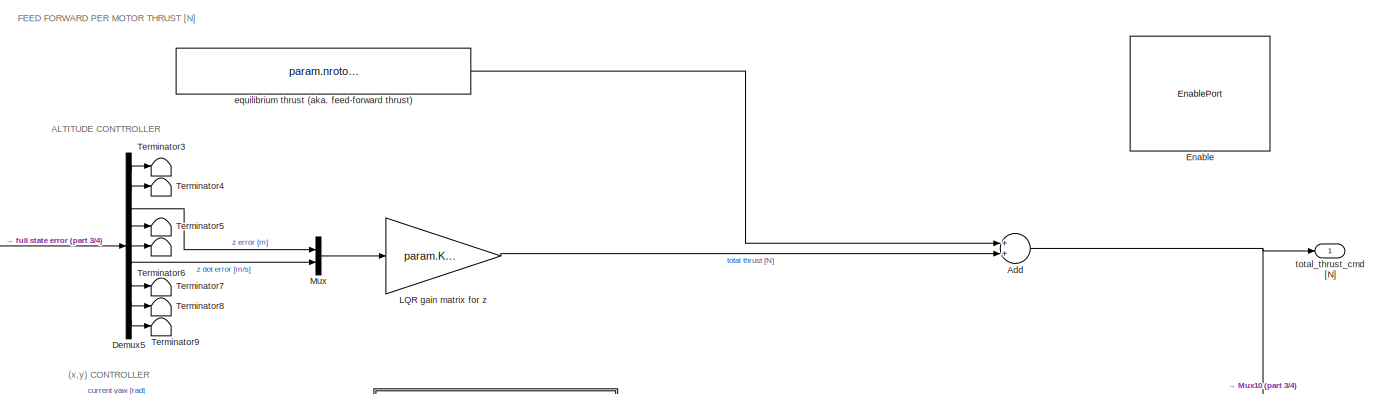
[diagram: LQR_Controller - part 1/4, top center region]
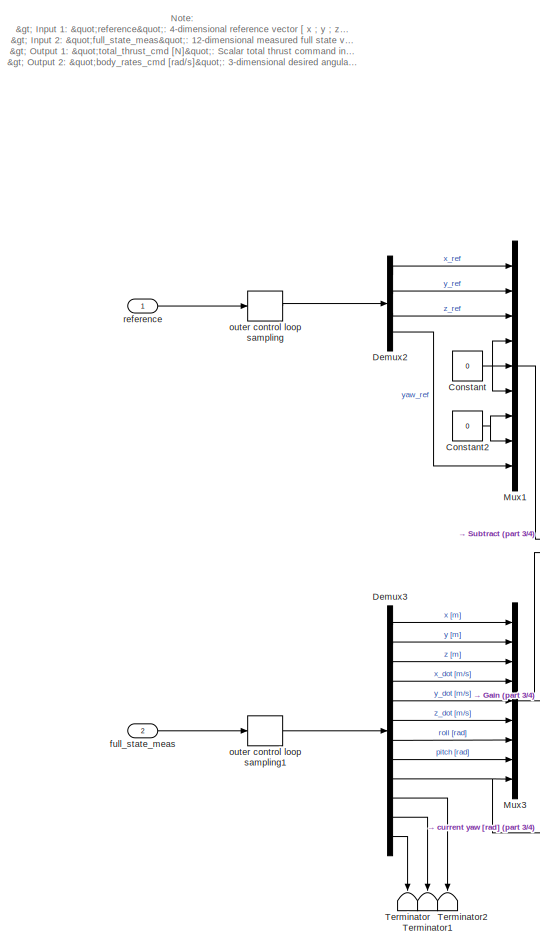
[diagram: LQR_Controller - part 2/4, left side, full height]
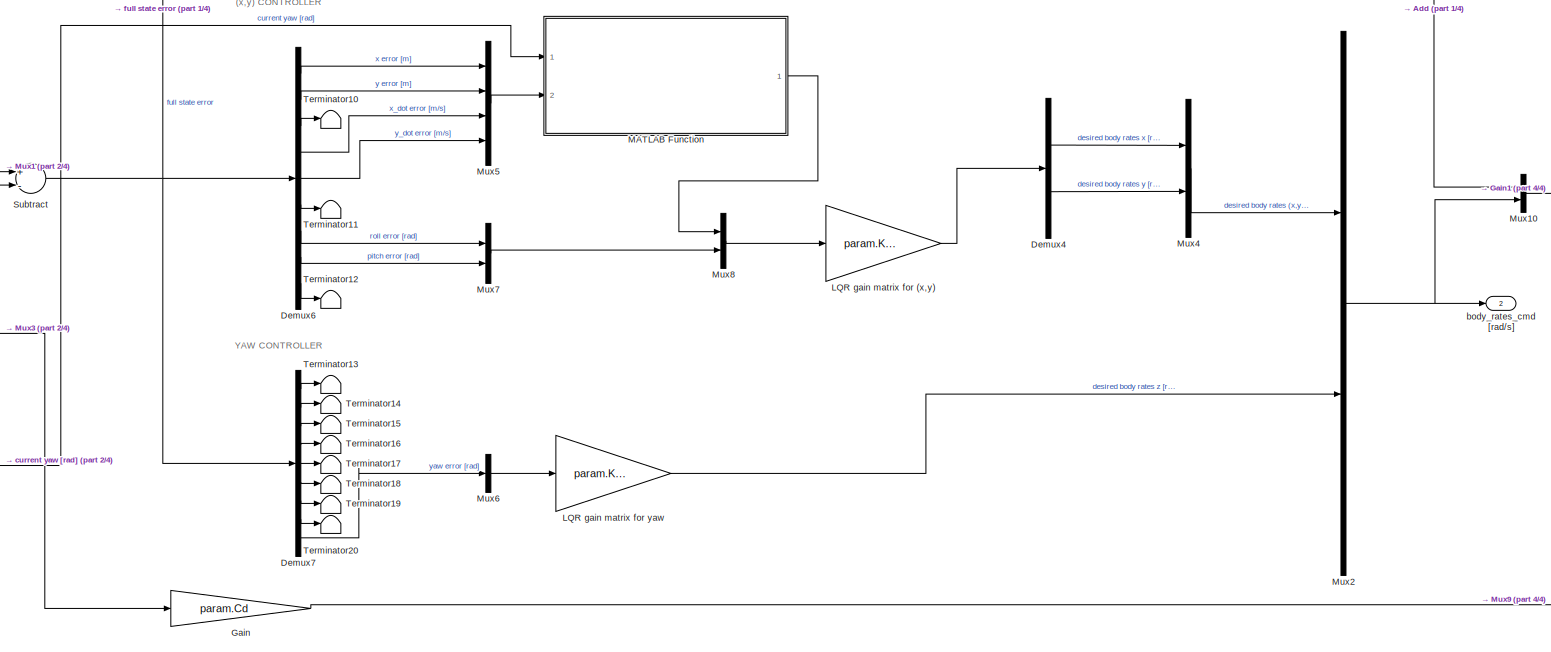
[diagram: LQR_Controller - part 3/4, bottom center region]
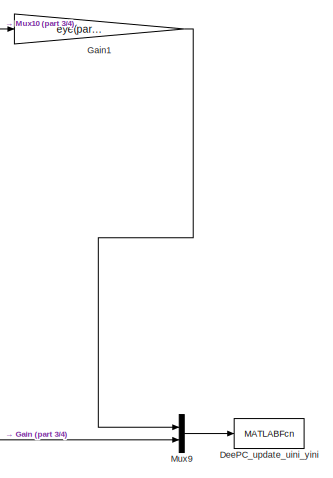
[diagram: LQR_Controller - part 4/4, bottom right region]
BLOCK [SubSystem] LQR_Controller
  Ports = [2, 2, 1]
  RequestExecContextInheritance = off
BLOCK [Sum] LQR_Controller/Add
  InputSameDT = off
  OutDataTypeStr = Inherit: Inherit via internal rule
  Ports = [2, 1]
  SaturateOnIntegerOverflow = off
BLOCK [Constant] LQR_Controller/Constant
  Value = 0
BLOCK [Constant] LQR_Controller/Constant2
  Value = 0
BLOCK [MATLABFcn] LQR_Controller/DeePC_update_uini_yini
  MATLABFcn = DeePC_update_uini_yini
  OutputDimensions = 0
  Ports = [1]
BLOCK [Demux] LQR_Controller/Demux2
  DisplayOption = bar
  Ports = [1, 4]
BLOCK [Demux] LQR_Controller/Demux3
  DisplayOption = bar
  Outputs = 12
  Ports = [1, 12]
BLOCK [Demux] LQR_Controller/Demux4
  DisplayOption = bar
  Outputs = 2
  Ports = [1, 2]
BLOCK [Demux] LQR_Controller/Demux5
  DisplayOption = bar
  Outputs = 9
  Ports = [1, 9]
BLOCK [Demux] LQR_Controller/Demux6
  DisplayOption = bar
  Outputs = 9
  Ports = [1, 9]
BLOCK [Demux] LQR_Controller/Demux7
  DisplayOption = bar
  Outputs = 9
  Ports = [1, 9]
BLOCK [EnablePort] LQR_Controller/Enable
  Ports = []
BLOCK [Gain] LQR_Controller/Gain
  Gain = param.Cd
  Multiplication = Matrix(K*u)
  OutDataTypeStr = Inherit: Inherit via internal rule
  ParamDataTypeStr = Inherit: Inherit via internal rule
  SaturateOnIntegerOverflow = off
BLOCK [Gain] LQR_Controller/Gain1
  Gain = eye(param.m, 4)
  Multiplication = Matrix(K*u)
  OutDataTypeStr = Inherit: Inherit via internal rule
  ParamDataTypeStr = Inherit: Inherit via internal rule
  SaturateOnIntegerOverflow = off
BLOCK [Gain] LQR_Controller/LQR gain matrix for (x,y)
  Gain = param.K_lqr_outer_loop(2:3,[1,2,4,5,7,8])
  Multiplication = Matrix(K*u)
  OutDataTypeStr = Inherit: Inherit via internal rule
  ParamDataTypeStr = Inherit: Inherit via internal rule
  SaturateOnIntegerOverflow = off
BLOCK [Gain] LQR_Controller/LQR gain matrix for yaw
  Gain = param.K_lqr_outer_loop(4,9)
  Multiplication = Matrix(K*u)
  OutDataTypeStr = Inherit: Inherit via internal rule
  ParamDataTypeStr = Inherit: Inherit via internal rule
  SaturateOnIntegerOverflow = off
BLOCK [Gain] LQR_Controller/LQR gain matrix for z
  Gain = param.K_lqr_outer_loop(1,[3,6])
  Multiplication = Matrix(K*u)
  OutDataTypeStr = Inherit: Inherit via internal rule
  ParamDataTypeStr = Inherit: Inherit via internal rule
  SaturateOnIntegerOverflow = off
BLOCK [SubSystem] LQR_Controller/MATLAB Function
  ErrorFcn = Stateflow.Translate.translate
  PermitHierarchicalResolution = ExplicitOnly
  Ports = [2, 1]
  RequestExecContextInheritance = off
  SFBlockType = MATLAB Function
  TreatAsAtomicUnit = on
BLOCK [Demux] LQR_Controller/MATLAB Function/ Demux 
  Outputs = 1
  Ports = [1, 1]
BLOCK [S-Function] LQR_Controller/MATLAB Function/ SFunction 
  EnableBusSupport = off
  FunctionName = sf_sfun
  PortCounts = [2 2]
  Ports = [2, 2]
  SFcnIsStateOwnerBlock = off
  SFunctionDeploymentMode = off
  Tag = Stateflow S-Function Crazyflie_Library 7
BLOCK [Terminator] LQR_Controller/MATLAB Function/ Terminator 
BLOCK [Inport] LQR_Controller/MATLAB Function/current_yaw
  IconDisplay = Port number
BLOCK [Outport] LQR_Controller/MATLAB Function/xy_error_in_body_frame
  IconDisplay = Port number
BLOCK [Inport] LQR_Controller/MATLAB Function/xy_error_in_inertial_frame
  IconDisplay = Port number
  Port = 2
BLOCK [Mux] LQR_Controller/Mux
  DisplayOption = bar
  Inputs = 2
  Ports = [2, 1]
BLOCK [Mux] LQR_Controller/Mux1
  DisplayOption = bar
  Inputs = 9
  Ports = [9, 1]
BLOCK [Mux] LQR_Controller/Mux10
  DisplayOption = bar
  Inputs = 2
  Ports = [2, 1]
BLOCK [Mux] LQR_Controller/Mux2
  DisplayOption = bar
  Inputs = 2
  Ports = [2, 1]
BLOCK [Mux] LQR_Controller/Mux3
  DisplayOption = bar
  Inputs = 9
  Ports = [9, 1]
BLOCK [Mux] LQR_Controller/Mux4
  DisplayOption = bar
  Inputs = 2
  Ports = [2, 1]
BLOCK [Mux] LQR_Controller/Mux5
  DisplayOption = bar
  Ports = [4, 1]
BLOCK [Mux] LQR_Controller/Mux6
  DisplayOption = bar
  Inputs = 1
  Ports = [1, 1]
BLOCK [Mux] LQR_Controller/Mux7
  DisplayOption = bar
  Inputs = 2
  Ports = [2, 1]
BLOCK [Mux] LQR_Controller/Mux8
  DisplayOption = bar
  Inputs = 2
  Ports = [2, 1]
BLOCK [Mux] LQR_Controller/Mux9
  DisplayOption = bar
  Inputs = 2
  Ports = [2, 1]
BLOCK [Sum] LQR_Controller/Subtract
  InputSameDT = off
  Inputs = +-
  OutDataTypeStr = Inherit: Inherit via internal rule
  Ports = [2, 1]
  SaturateOnIntegerOverflow = off
BLOCK [Terminator] LQR_Controller/Terminator
BLOCK [Terminator] LQR_Controller/Terminator1
BLOCK [Terminator] LQR_Controller/Terminator10
BLOCK [Terminator] LQR_Controller/Terminator11
BLOCK [Terminator] LQR_Controller/Terminator12
BLOCK [Terminator] LQR_Controller/Terminator13
BLOCK [Terminator] LQR_Controller/Terminator14
BLOCK [Terminator] LQR_Controller/Terminator15
BLOCK [Terminator] LQR_Controller/Terminator16
BLOCK [Terminator] LQR_Controller/Terminator17
BLOCK [Terminator] LQR_Controller/Terminator18
BLOCK [Terminator] LQR_Controller/Terminator19
BLOCK [Terminator] LQR_Controller/Terminator2
BLOCK [Terminator] LQR_Controller/Terminator20
BLOCK [Terminator] LQR_Controller/Terminator3
BLOCK [Terminator] LQR_Controller/Terminator4
BLOCK [Terminator] LQR_Controller/Terminator5
BLOCK [Terminator] LQR_Controller/Terminator6
BLOCK [Terminator] LQR_Controller/Terminator7
BLOCK [Terminator] LQR_Controller/Terminator8
BLOCK [Terminator] LQR_Controller/Terminator9
BLOCK [Outport] LQR_Controller/body_rates_cmd [rad//s]
  IconDisplay = Port number
  Port = 2
BLOCK [Constant] LQR_Controller/equilibrium thrust (aka. feed-forward thrust)
  Value = param.nrotor_vehicle_mass_for_controller * param.g
BLOCK [Inport] LQR_Controller/full_state_meas
  IconDisplay = Port number
  Port = 2
BLOCK [ZeroOrderHold] LQR_Controller/outer control loop sampling
  SampleTime = param.sample_time_controller_outer
BLOCK [ZeroOrderHold] LQR_Controller/outer control loop sampling1
  SampleTime = param.sample_time_controller_outer
BLOCK [Inport] LQR_Controller/reference
  IconDisplay = Port number
BLOCK [Outport] LQR_Controller/total_thrust_cmd [N]
  IconDisplay = Port number
BLOCK [SubSystem] LQR_Controller_Linearized_Model
  Ports = [2, 2, 1]
  RequestExecContextInheritance = off
BLOCK [Constant] LQR_Controller_Linearized_Model/Constant
  Value = 0
BLOCK [Constant] LQR_Controller_Linearized_Model/Constant2
  Value = 0
BLOCK [MATLABFcn] LQR_Controller_Linearized_Model/DeePC_update_uini_yini
  MATLABFcn = DeePC_update_uini_yini
  OutputDimensions = 0
  Ports = [1]
BLOCK [Demux] LQR_Controller_Linearized_Model/Demux2
  DisplayOption = bar
  Ports = [1, 4]
BLOCK [Demux] LQR_Controller_Linearized_Model/Demux3
  DisplayOption = bar
  Outputs = 12
  Ports = [1, 12]
BLOCK [Demux] LQR_Controller_Linearized_Model/Demux4
  DisplayOption = bar
  Outputs = 2
  Ports = [1, 2]
BLOCK [Demux] LQR_Controller_Linearized_Model/Demux5
  DisplayOption = bar
  Outputs = 9
  Ports = [1, 9]
BLOCK [Demux] LQR_Controller_Linearized_Model/Demux6
  DisplayOption = bar
  Outputs = 9
  Ports = [1, 9]
BLOCK [Demux] LQR_Controller_Linearized_Model/Demux7
  DisplayOption = bar
  Outputs = 9
  Ports = [1, 9]
BLOCK [EnablePort] LQR_Controller_Linearized_Model/Enable
  Ports = []
BLOCK [Gain] LQR_Controller_Linearized_Model/Gain
  Gain = param.Cd
  Multiplication = Matrix(K*u)
  OutDataTypeStr = Inherit: Inherit via internal rule
  ParamDataTypeStr = Inherit: Inherit via internal rule
  SaturateOnIntegerOverflow = off
BLOCK [Gain] LQR_Controller_Linearized_Model/Gain1
  Gain = eye(param.m, 4)
  Multiplication = Matrix(K*u)
  OutDataTypeStr = Inherit: Inherit via internal rule
  ParamDataTypeStr = Inherit: Inherit via internal rule
  SaturateOnIntegerOverflow = off
BLOCK [Gain] LQR_Controller_Linearized_Model/LQR gain matrix for (x,y)
  Gain = param.K_lqr_outer_loop(2:3,[1,2,4,5,7,8])
  Multiplication = Matrix(K*u)
  OutDataTypeStr = Inherit: Inherit via internal rule
  ParamDataTypeStr = Inherit: Inherit via internal rule
  SaturateOnIntegerOverflow = off
BLOCK [Gain] LQR_Controller_Linearized_Model/LQR gain matrix for yaw
  Gain = param.K_lqr_outer_loop(4,9)
  Multiplication = Matrix(K*u)
  OutDataTypeStr = Inherit: Inherit via internal rule
  ParamDataTypeStr = Inherit: Inherit via internal rule
  SaturateOnIntegerOverflow = off
BLOCK [Gain] LQR_Controller_Linearized_Model/LQR gain matrix for z
  Gain = param.K_lqr_outer_loop(1,[3,6])
  Multiplication = Matrix(K*u)
  OutDataTypeStr = Inherit: Inherit via internal rule
  ParamDataTypeStr = Inherit: Inherit via internal rule
  SaturateOnIntegerOverflow = off
BLOCK [Mux] LQR_Controller_Linearized_Model/Mux
  DisplayOption = bar
  Inputs = 2
  Ports = [2, 1]
BLOCK [Mux] LQR_Controller_Linearized_Model/Mux1
  DisplayOption = bar
  Inputs = 9
  Ports = [9, 1]
BLOCK [Mux] LQR_Controller_Linearized_Model/Mux10
  DisplayOption = bar
  Inputs = 2
  Ports = [2, 1]
BLOCK [Mux] LQR_Controller_Linearized_Model/Mux2
  DisplayOption = bar
  Inputs = 2
  Ports = [2, 1]
BLOCK [Mux] LQR_Controller_Linearized_Model/Mux3
  DisplayOption = bar
  Inputs = 9
  Ports = [9, 1]
BLOCK [Mux] LQR_Controller_Linearized_Model/Mux4
  DisplayOption = bar
  Inputs = 2
  Ports = [2, 1]
BLOCK [Mux] LQR_Controller_Linearized_Model/Mux5
  DisplayOption = bar
  Ports = [4, 1]
BLOCK [Mux] LQR_Controller_Linearized_Model/Mux6
  DisplayOption = bar
  Inputs = 1
  Ports = [1, 1]
BLOCK [Mux] LQR_Controller_Linearized_Model/Mux7
  DisplayOption = bar
  Inputs = 2
  Ports = [2, 1]
BLOCK [Mux] LQR_Controller_Linearized_Model/Mux8
  DisplayOption = bar
  Inputs = 2
  Ports = [2, 1]
BLOCK [Mux] LQR_Controller_Linearized_Model/Mux9
  DisplayOption = bar
  Inputs = 2
  Ports = [2, 1]
BLOCK [Sum] LQR_Controller_Linearized_Model/Subtract
  InputSameDT = off
  Inputs = +-
  OutDataTypeStr = Inherit: Inherit via internal rule
  Ports = [2, 1]
  SaturateOnIntegerOverflow = off
BLOCK [Terminator] LQR_Controller_Linearized_Model/Terminator
BLOCK [Terminator] LQR_Controller_Linearized_Model/Terminator1
BLOCK [Terminator] LQR_Controller_Linearized_Model/Terminator10
BLOCK [Terminator] LQR_Controller_Linearized_Model/Terminator11
BLOCK [Terminator] LQR_Controller_Linearized_Model/Terminator12
BLOCK [Terminator] LQR_Controller_Linearized_Model/Terminator13
BLOCK [Terminator] LQR_Controller_Linearized_Model/Terminator14
BLOCK [Terminator] LQR_Controller_Linearized_Model/Terminator15
BLOCK [Terminator] LQR_Controller_Linearized_Model/Terminator16
BLOCK [Terminator] LQR_Controller_Linearized_Model/Terminator17
BLOCK [Terminator] LQR_Controller_Linearized_Model/Terminator18
BLOCK [Terminator] LQR_Controller_Linearized_Model/Terminator19
BLOCK [Terminator] LQR_Controller_Linearized_Model/Terminator2
BLOCK [Terminator] LQR_Controller_Linearized_Model/Terminator20
BLOCK [Terminator] LQR_Controller_Linearized_Model/Terminator3
BLOCK [Terminator] LQR_Controller_Linearized_Model/Terminator4
BLOCK [Terminator] LQR_Controller_Linearized_Model/Terminator5
BLOCK [Terminator] LQR_Controller_Linearized_Model/Terminator6
BLOCK [Terminator] LQR_Controller_Linearized_Model/Terminator7
BLOCK [Terminator] LQR_Controller_Linearized_Model/Terminator8
BLOCK [Terminator] LQR_Controller_Linearized_Model/Terminator9
BLOCK [Outport] LQR_Controller_Linearized_Model/body_rates_cmd [rad//s]
  IconDisplay = Port number
  Port = 2
BLOCK [Inport] LQR_Controller_Linearized_Model/full_state_meas
  IconDisplay = Port number
  Port = 2
BLOCK [ZeroOrderHold] LQR_Controller_Linearized_Model/outer control loop sampling
  SampleTime = param.sample_time_controller_outer
BLOCK [ZeroOrderHold] LQR_Controller_Linearized_Model/outer control loop sampling1
  SampleTime = param.sample_time_controller_outer
BLOCK [Inport] LQR_Controller_Linearized_Model/reference
  IconDisplay = Port number
BLOCK [Outport] LQR_Controller_Linearized_Model/total_thrust_cmd [N]
  IconDisplay = Port number
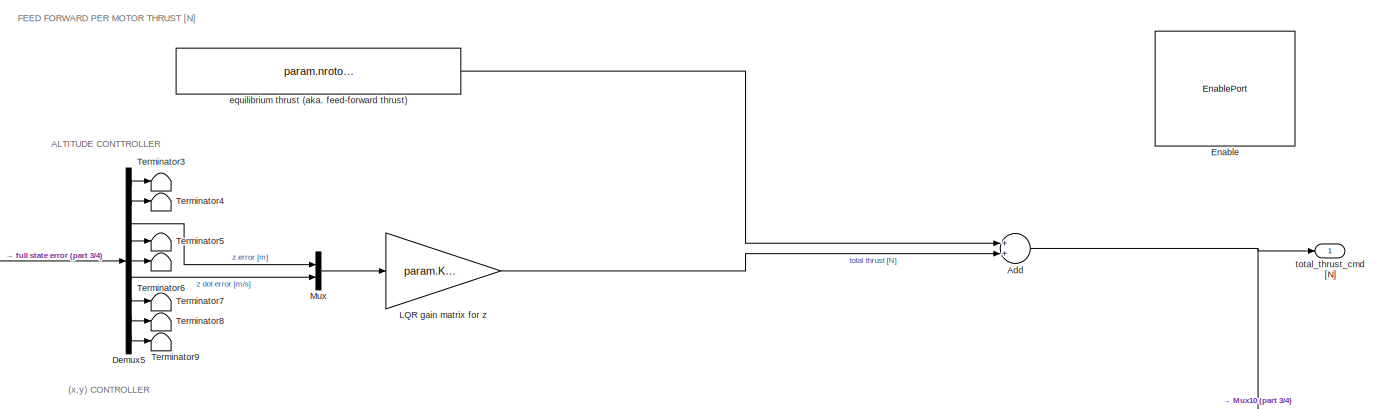
[diagram: LQR_Controller_Linearized_Model_w_Gravity - part 1/4, top center region]
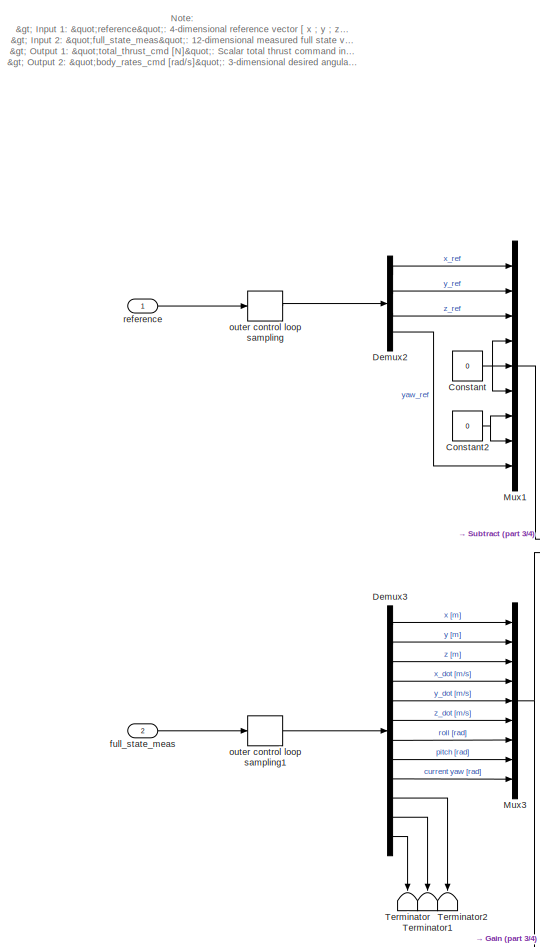
[diagram: LQR_Controller_Linearized_Model_w_Gravity - part 2/4, left side, full height]
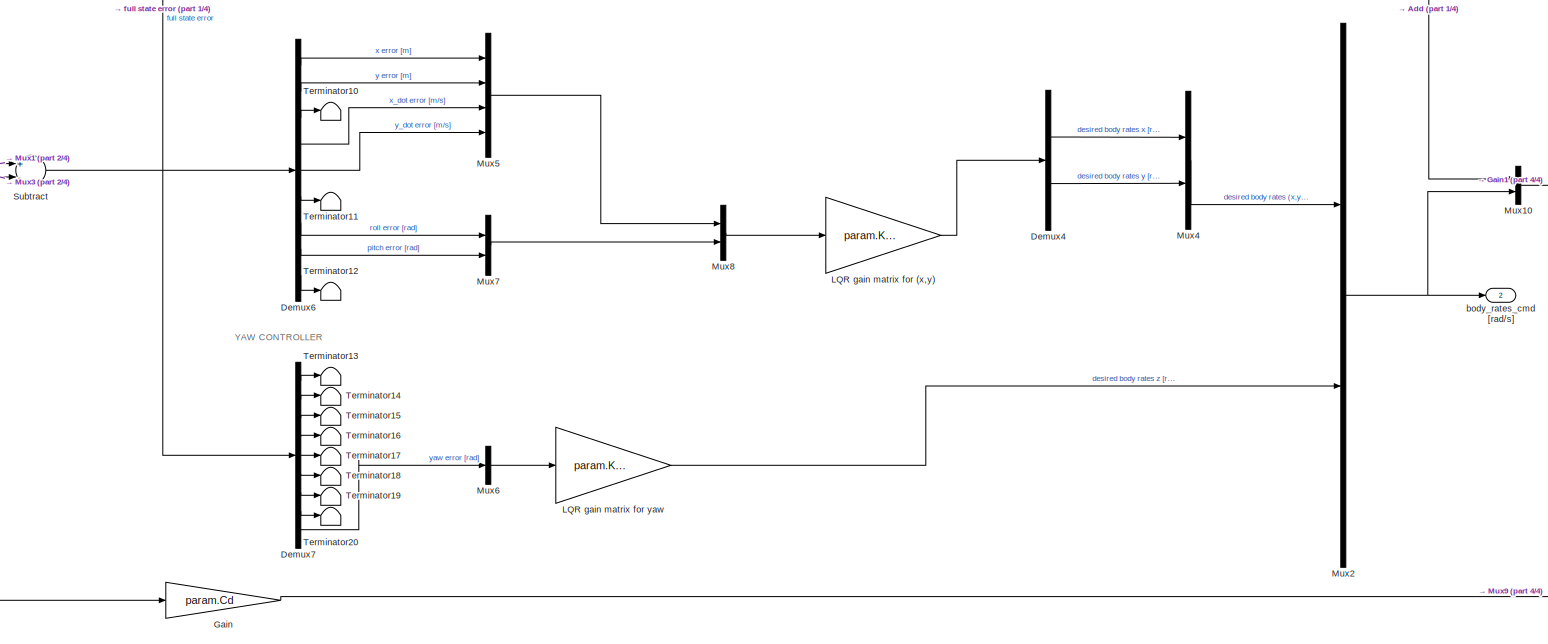
[diagram: LQR_Controller_Linearized_Model_w_Gravity - part 3/4, bottom center region]
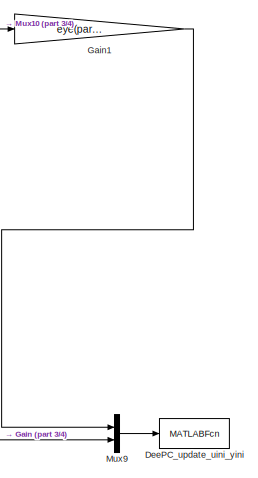
[diagram: LQR_Controller_Linearized_Model_w_Gravity - part 4/4, bottom right region]
BLOCK [SubSystem] LQR_Controller_Linearized_Model_w_Gravity
  Ports = [2, 2, 1]
  RequestExecContextInheritance = off
BLOCK [Sum] LQR_Controller_Linearized_Model_w_Gravity/Add
  InputSameDT = off
  OutDataTypeStr = Inherit: Inherit via internal rule
  Ports = [2, 1]
  SaturateOnIntegerOverflow = off
BLOCK [Constant] LQR_Controller_Linearized_Model_w_Gravity/Constant
  Value = 0
BLOCK [Constant] LQR_Controller_Linearized_Model_w_Gravity/Constant2
  Value = 0
BLOCK [MATLABFcn] LQR_Controller_Linearized_Model_w_Gravity/DeePC_update_uini_yini
  MATLABFcn = DeePC_update_uini_yini
  OutputDimensions = 0
  Ports = [1]
BLOCK [Demux] LQR_Controller_Linearized_Model_w_Gravity/Demux2
  DisplayOption = bar
  Ports = [1, 4]
BLOCK [Demux] LQR_Controller_Linearized_Model_w_Gravity/Demux3
  DisplayOption = bar
  Outputs = 12
  Ports = [1, 12]
BLOCK [Demux] LQR_Controller_Linearized_Model_w_Gravity/Demux4
  DisplayOption = bar
  Outputs = 2
  Ports = [1, 2]
BLOCK [Demux] LQR_Controller_Linearized_Model_w_Gravity/Demux5
  DisplayOption = bar
  Outputs = 9
  Ports = [1, 9]
BLOCK [Demux] LQR_Controller_Linearized_Model_w_Gravity/Demux6
  DisplayOption = bar
  Outputs = 9
  Ports = [1, 9]
BLOCK [Demux] LQR_Controller_Linearized_Model_w_Gravity/Demux7
  DisplayOption = bar
  Outputs = 9
  Ports = [1, 9]
BLOCK [EnablePort] LQR_Controller_Linearized_Model_w_Gravity/Enable
  Ports = []
BLOCK [Gain] LQR_Controller_Linearized_Model_w_Gravity/Gain
  Gain = param.Cd
  Multiplication = Matrix(K*u)
  OutDataTypeStr = Inherit: Inherit via internal rule
  ParamDataTypeStr = Inherit: Inherit via internal rule
  SaturateOnIntegerOverflow = off
BLOCK [Gain] LQR_Controller_Linearized_Model_w_Gravity/Gain1
  Gain = eye(param.m, 4)
  Multiplication = Matrix(K*u)
  OutDataTypeStr = Inherit: Inherit via internal rule
  ParamDataTypeStr = Inherit: Inherit via internal rule
  SaturateOnIntegerOverflow = off
BLOCK [Gain] LQR_Controller_Linearized_Model_w_Gravity/LQR gain matrix for (x,y)
  Gain = param.K_lqr_outer_loop(2:3,[1,2,4,5,7,8])
  Multiplication = Matrix(K*u)
  OutDataTypeStr = Inherit: Inherit via internal rule
  ParamDataTypeStr = Inherit: Inherit via internal rule
  SaturateOnIntegerOverflow = off
BLOCK [Gain] LQR_Controller_Linearized_Model_w_Gravity/LQR gain matrix for yaw
  Gain = param.K_lqr_outer_loop(4,9)
  Multiplication = Matrix(K*u)
  OutDataTypeStr = Inherit: Inherit via internal rule
  ParamDataTypeStr = Inherit: Inherit via internal rule
  SaturateOnIntegerOverflow = off
BLOCK [Gain] LQR_Controller_Linearized_Model_w_Gravity/LQR gain matrix for z
  Gain = param.K_lqr_outer_loop(1,[3,6])
  Multiplication = Matrix(K*u)
  OutDataTypeStr = Inherit: Inherit via internal rule
  ParamDataTypeStr = Inherit: Inherit via internal rule
  SaturateOnIntegerOverflow = off
BLOCK [Mux] LQR_Controller_Linearized_Model_w_Gravity/Mux
  DisplayOption = bar
  Inputs = 2
  Ports = [2, 1]
BLOCK [Mux] LQR_Controller_Linearized_Model_w_Gravity/Mux1
  DisplayOption = bar
  Inputs = 9
  Ports = [9, 1]
BLOCK [Mux] LQR_Controller_Linearized_Model_w_Gravity/Mux10
  DisplayOption = bar
  Inputs = 2
  Ports = [2, 1]
BLOCK [Mux] LQR_Controller_Linearized_Model_w_Gravity/Mux2
  DisplayOption = bar
  Inputs = 2
  Ports = [2, 1]
BLOCK [Mux] LQR_Controller_Linearized_Model_w_Gravity/Mux3
  DisplayOption = bar
  Inputs = 9
  Ports = [9, 1]
BLOCK [Mux] LQR_Controller_Linearized_Model_w_Gravity/Mux4
  DisplayOption = bar
  Inputs = 2
  Ports = [2, 1]
BLOCK [Mux] LQR_Controller_Linearized_Model_w_Gravity/Mux5
  DisplayOption = bar
  Ports = [4, 1]
BLOCK [Mux] LQR_Controller_Linearized_Model_w_Gravity/Mux6
  DisplayOption = bar
  Inputs = 1
  Ports = [1, 1]
BLOCK [Mux] LQR_Controller_Linearized_Model_w_Gravity/Mux7
  DisplayOption = bar
  Inputs = 2
  Ports = [2, 1]
BLOCK [Mux] LQR_Controller_Linearized_Model_w_Gravity/Mux8
  DisplayOption = bar
  Inputs = 2
  Ports = [2, 1]
BLOCK [Mux] LQR_Controller_Linearized_Model_w_Gravity/Mux9
  DisplayOption = bar
  Inputs = 2
  Ports = [2, 1]
BLOCK [Sum] LQR_Controller_Linearized_Model_w_Gravity/Subtract
  InputSameDT = off
  Inputs = +-
  OutDataTypeStr = Inherit: Inherit via internal rule
  Ports = [2, 1]
  SaturateOnIntegerOverflow = off
BLOCK [Terminator] LQR_Controller_Linearized_Model_w_Gravity/Terminator
BLOCK [Terminator] LQR_Controller_Linearized_Model_w_Gravity/Terminator1
BLOCK [Terminator] LQR_Controller_Linearized_Model_w_Gravity/Terminator10
BLOCK [Terminator] LQR_Controller_Linearized_Model_w_Gravity/Terminator11
BLOCK [Terminator] LQR_Controller_Linearized_Model_w_Gravity/Terminator12
BLOCK [Terminator] LQR_Controller_Linearized_Model_w_Gravity/Terminator13
BLOCK [Terminator] LQR_Controller_Linearized_Model_w_Gravity/Terminator14
BLOCK [Terminator] LQR_Controller_Linearized_Model_w_Gravity/Terminator15
BLOCK [Terminator] LQR_Controller_Linearized_Model_w_Gravity/Terminator16
BLOCK [Terminator] LQR_Controller_Linearized_Model_w_Gravity/Terminator17
BLOCK [Terminator] LQR_Controller_Linearized_Model_w_Gravity/Terminator18
BLOCK [Terminator] LQR_Controller_Linearized_Model_w_Gravity/Terminator19
BLOCK [Terminator] LQR_Controller_Linearized_Model_w_Gravity/Terminator2
BLOCK [Terminator] LQR_Controller_Linearized_Model_w_Gravity/Terminator20
BLOCK [Terminator] LQR_Controller_Linearized_Model_w_Gravity/Terminator3
BLOCK [Terminator] LQR_Controller_Linearized_Model_w_Gravity/Terminator4
BLOCK [Terminator] LQR_Controller_Linearized_Model_w_Gravity/Terminator5
BLOCK [Terminator] LQR_Controller_Linearized_Model_w_Gravity/Terminator6
BLOCK [Terminator] LQR_Controller_Linearized_Model_w_Gravity/Terminator7
BLOCK [Terminator] LQR_Controller_Linearized_Model_w_Gravity/Terminator8
BLOCK [Terminator] LQR_Controller_Linearized_Model_w_Gravity/Terminator9
BLOCK [Outport] LQR_Controller_Linearized_Model_w_Gravity/body_rates_cmd [rad//s]
  IconDisplay = Port number
  Port = 2
BLOCK [Constant] LQR_Controller_Linearized_Model_w_Gravity/equilibrium thrust (aka. feed-forward thrust)
  Value = param.nrotor_vehicle_mass_for_controller * param.g
BLOCK [Inport] LQR_Controller_Linearized_Model_w_Gravity/full_state_meas
  IconDisplay = Port number
  Port = 2
BLOCK [ZeroOrderHold] LQR_Controller_Linearized_Model_w_Gravity/outer control loop sampling
  SampleTime = param.sample_time_controller_outer
BLOCK [ZeroOrderHold] LQR_Controller_Linearized_Model_w_Gravity/outer control loop sampling1
  SampleTime = param.sample_time_controller_outer
BLOCK [Inport] LQR_Controller_Linearized_Model_w_Gravity/reference
  IconDisplay = Port number
BLOCK [Outport] LQR_Controller_Linearized_Model_w_Gravity/total_thrust_cmd [N]
  IconDisplay = Port number
ANNOTATION Crazyflie_Linearized_Model: full state measurement (x, y, z, x_dot, y_dot, z_dot, roll, pitch, yaw, roll_dot, pitch_dot, yaw_dot)
ANNOTATION Crazyflie_Linearized_Model_w_Gravity: full state measurement (x, y, z, x_dot, y_dot, z_dot, roll, pitch, yaw, roll_dot, pitch_dot, yaw_dot)
ANNOTATION Crazyflie_Model: full state measurement (x, y, z, x_dot, y_dot, z_dot, roll, pitch, yaw, roll_dot, pitch_dot, yaw_dot)
ANNOTATION Crazyflie_Model: Note: > Input 1: "total_thrust_cmd [N]": Scalar total thrust command in [Newtons] > Input 2: "body_rates_cmd [rad/s]": 3-dimensional desired angular rates about body frame [ x ; y ; z ] axes > Output 1: "per_motor_thrust [N]": 4-dimensional actual thrust of each rotor in [Newtons] > Output 2: "full_state_act": 12-dimensional actual full state vector [ position ; velocity ; euler angles ; euler rat...<+130ch>
ANNOTATION Crazyflie_Model: INNER CONTROLLER (to be run on the N-rotor vehicle)
ANNOTATION Crazyflie_Model/Measurements: Note: > The "full state" is defined as the 12-dimensional vector: [ position ; velocity ; euler angles ; euler rates ]
ANNOTATION Crazyflie_Model/Measurements: MEASUREMENTS
ANNOTATION Crazyflie_Model/N-rotor vehicle model: Note: > The "full state" is defined as the 12-dimensional vector: [ position ; velocity ; euler angles ; euler rates ] > The "thrust [N]" input should be a column vector with length equal to the number of propellers on the vehicle, i.e., with length equal to N
ANNOTATION Crazyflie_Model/N-rotor vehicle model: EQUATIONS OF MOTION FOR THE N-ROTOR VEHICLE
ANNOTATION Crazyflie_Model/N-rotor vehicle model/convert motor comand to thrust: CONVERT MOTOR COMMAND AS uint16 VALUE TO THRUST IN NEWTONS > Apply the following equation: thust [N] = nrotor_vehicle_thrust_max * ( cmd_2_newtons_conversion_quadratic_coefficient * cmd^2 + cmd_2_newtons_conversion_linear_coefficient * cmd ) > This sub-system acts element-wise on the input, i.e., the output is a vector of the same length as the input
ANNOTATION Crazyflie_Model/convert thrust [N] to [uint16] motor commands: CONVERT THRUST IN NEWTONS TO MOTOR COMMAND AS uint16 VALUE > This find the positive solution of the equation: thust [N] = nrotor_vehicle_thrust_max * ( cmd_2_newtons_conversion_quadratic_coefficient * cmd^2 + cmd_2_newtons_conversion_linear_coefficient * cmd ) > This sub-system acts element-wise on the input, i.e., the output is a vector of the same length as the input
ANNOTATION Crazyflie_Model/inner control loop: Note: > The "full state" is defined as the 12-dimensional vector: [ position ; velocity ; euler angles ; euler rates ] > The "thrusts ref" is input as a column vector with a desired 16-bit command per motor, i.e., with length equal to N
ANNOTATION Crazyflie_Model/inner control loop: INNER CONTROLLER
ANNOTATION Crazyflie_Model/inner control loop: RATE CONTROLLER ABOUT THE BODY FRAME x-AXIS
ANNOTATION Crazyflie_Model/inner control loop: RATE CONTROLLER ABOUT THE BODY FRAME y-AXIS
ANNOTATION Crazyflie_Model/inner control loop: RATE CONTROLLER ABOUT THE BODY FRAME z-AXIS
ANNOTATION DeePC_Controller_gurobi: Note: > Input 1: "reference": 4-dimensional reference vector [ x ; y ; z ; yaw ]. > Input 2: "full_state_meas": 12-dimensional measured full state vector [ position ; velocity ; euler angles ; euler rates ] > Output 1: "total_thrust_cmd [N]": Scalar total thrust command in [Newtons] > Output 2: "body_rates_cmd [rad/s]": 3-dimensional desired angular rates about body frame [ x ; y ; z ] axes
ANNOTATION DeePC_Controller_gurobi: YAW LQR CONTROLLER Used if DeePC yaw control is off. yaw is controlled to 0
ANNOTATION DeePC_Controller_osqp: Note: > Input 1: "reference": 4-dimensional reference vector [ x ; y ; z ; yaw ]. > Input 2: "full_state_meas": 12-dimensional measured full state vector [ position ; velocity ; euler angles ; euler rates ] > Output 1: "total_thrust_cmd [N]": Scalar total thrust command in [Newtons] > Output 2: "body_rates_cmd [rad/s]": 3-dimensional desired angular rates about body frame [ x ; y ; z ] axes
ANNOTATION DeePC_Controller_osqp: YAW LQR CONTROLLER Used if DeePC yaw control is off. yaw is controlled to 0
ANNOTATION DeePC_Controller_yalmip: Note: > Input 1: "reference": 4-dimensional reference vector [ x ; y ; z ; yaw ]. > Input 2: "full_state_meas": 12-dimensional measured full state vector [ position ; velocity ; euler angles ; euler rates ] > Output 1: "total_thrust_cmd [N]": Scalar total thrust command in [Newtons] > Output 2: "body_rates_cmd [rad/s]": 3-dimensional desired angular rates about body frame [ x ; y ; z ] axes
ANNOTATION DeePC_Controller_yalmip: YAW LQR CONTROLLER Used if DeePC yaw control is off. yaw is controlled to 0
ANNOTATION LQR_Controller: (x,y) CONTROLLER
ANNOTATION LQR_Controller: Note: > Input 1: "reference": 4-dimensional reference vector [ x ; y ; z ; yaw ]. > Input 2: "full_state_meas": 12-dimensional measured full state vector [ position ; velocity ; euler angles ; euler rates ] > Output 1: "total_thrust_cmd [N]": Scalar total thrust command in [Newtons] > Output 2: "body_rates_cmd [rad/s]": 3-dimensional desired angular rates about body frame [ x ; y ; z ] axes
ANNOTATION LQR_Controller: ALTITUDE CONTTROLLER
ANNOTATION LQR_Controller: FEED FORWARD PER MOTOR THRUST [N]
ANNOTATION LQR_Controller: YAW CONTROLLER
ANNOTATION LQR_Controller_Linearized_Model: (x,y) CONTROLLER
ANNOTATION LQR_Controller_Linearized_Model: Note: > Input 1: "reference": 4-dimensional reference vector [ x ; y ; z ; yaw ]. > Input 2: "full_state_meas": 12-dimensional measured full state vector [ position ; velocity ; euler angles ; euler rates ] > Output 1: "total_thrust_cmd [N]": Scalar total thrust command in [Newtons] > Output 2: "body_rates_cmd [rad/s]": 3-dimensional desired angular rates about body frame [ x ; y ; z ] axes
ANNOTATION LQR_Controller_Linearized_Model: ALTITUDE CONTTROLLER
ANNOTATION LQR_Controller_Linearized_Model: YAW CONTROLLER
ANNOTATION LQR_Controller_Linearized_Model_w_Gravity: (x,y) CONTROLLER
ANNOTATION LQR_Controller_Linearized_Model_w_Gravity: Note: > Input 1: "reference": 4-dimensional reference vector [ x ; y ; z ; yaw ]. > Input 2: "full_state_meas": 12-dimensional measured full state vector [ position ; velocity ; euler angles ; euler rates ] > Output 1: "total_thrust_cmd [N]": Scalar total thrust command in [Newtons] > Output 2: "body_rates_cmd [rad/s]": 3-dimensional desired angular rates about body frame [ x ; y ; z ] axes
ANNOTATION LQR_Controller_Linearized_Model_w_Gravity: ALTITUDE CONTTROLLER
ANNOTATION LQR_Controller_Linearized_Model_w_Gravity: FEED FORWARD PER MOTOR THRUST [N]
ANNOTATION LQR_Controller_Linearized_Model_w_Gravity: YAW CONTROLLER
LINE Crazyflie_Linearized_Model/Add:1 -> Crazyflie_Linearized_Model/Integrator:1
LINE Crazyflie_Linearized_Model/Gain1:1 -> Crazyflie_Linearized_Model/Add:2
LINE Crazyflie_Linearized_Model/Gain:1 -> Crazyflie_Linearized_Model/Add:1
NET Crazyflie_Linearized_Model/Integrator:1 -> Crazyflie_Linearized_Model/Gain1:1, Crazyflie_Linearized_Model/Mux1:1
LINE Crazyflie_Linearized_Model/Measurements/"square root" of the full state covariance matrix:1 -> Crazyflie_Linearized_Model/Measurements/draw sample from multivariate Gaussian for full state:3
LINE Crazyflie_Linearized_Model/Measurements/Add2:1 -> Crazyflie_Linearized_Model/Measurements/full state measurements:1
LINE Crazyflie_Linearized_Model/Measurements/draw sample from multivariate Gaussian for full state:1 -> Crazyflie_Linearized_Model/Measurements/full state noise inclusion:1
LINE Crazyflie_Linearized_Model/Measurements/full state noise inclusion:1 -> Crazyflie_Linearized_Model/Measurements/Add2:1
LINE Crazyflie_Linearized_Model/Measurements/full state:1 -> Crazyflie_Linearized_Model/Measurements/measurement sampling > for Vicon:1
LINE Crazyflie_Linearized_Model/Measurements/mean vector for the full state:1 -> Crazyflie_Linearized_Model/Measurements/draw sample from multivariate Gaussian for full state:2
LINE Crazyflie_Linearized_Model/Measurements/measurement sampling > for Vicon:1 -> Crazyflie_Linearized_Model/Measurements/Add2:2
LINE Crazyflie_Linearized_Model/Measurements/standard normal rand for full state:1 -> Crazyflie_Linearized_Model/Measurements/draw sample from multivariate Gaussian for full state:1
LINE Crazyflie_Linearized_Model/Measurements:1 -> Crazyflie_Linearized_Model/full_state_meas:1
NET Crazyflie_Linearized_Model/Mux1:1 -> Crazyflie_Linearized_Model/Measurements:1, Crazyflie_Linearized_Model/full_state_act:1
LINE Crazyflie_Linearized_Model/Mux:1 -> Crazyflie_Linearized_Model/Gain:1
LINE Crazyflie_Linearized_Model/Unit Delay:1 -> Crazyflie_Linearized_Model/Mux1:2
NET Crazyflie_Linearized_Model/body_rates_cmd [rad//s]:1 -> Crazyflie_Linearized_Model/Mux:2, Crazyflie_Linearized_Model/Unit Delay:1
LINE Crazyflie_Linearized_Model/total_thrust_cmd [N]:1 -> Crazyflie_Linearized_Model/Mux:1
LINE Crazyflie_Linearized_Model_w_Gravity/Add1:1 -> Crazyflie_Linearized_Model_w_Gravity/Mux:1
LINE Crazyflie_Linearized_Model_w_Gravity/Add:1 -> Crazyflie_Linearized_Model_w_Gravity/Integrator:1
LINE Crazyflie_Linearized_Model_w_Gravity/Constant:1 -> Crazyflie_Linearized_Model_w_Gravity/Add1:2
LINE Crazyflie_Linearized_Model_w_Gravity/Gain1:1 -> Crazyflie_Linearized_Model_w_Gravity/Add:2
LINE Crazyflie_Linearized_Model_w_Gravity/Gain:1 -> Crazyflie_Linearized_Model_w_Gravity/Add:1
NET Crazyflie_Linearized_Model_w_Gravity/Integrator:1 -> Crazyflie_Linearized_Model_w_Gravity/Gain1:1, Crazyflie_Linearized_Model_w_Gravity/Mux1:1
LINE Crazyflie_Linearized_Model_w_Gravity/Measurements/"square root" of the full state covariance matrix:1 -> Crazyflie_Linearized_Model_w_Gravity/Measurements/draw sample from multivariate Gaussian for full state:3
LINE Crazyflie_Linearized_Model_w_Gravity/Measurements/Add2:1 -> Crazyflie_Linearized_Model_w_Gravity/Measurements/full state measurements:1
LINE Crazyflie_Linearized_Model_w_Gravity/Measurements/draw sample from multivariate Gaussian for full state:1 -> Crazyflie_Linearized_Model_w_Gravity/Measurements/full state noise inclusion:1
LINE Crazyflie_Linearized_Model_w_Gravity/Measurements/full state noise inclusion:1 -> Crazyflie_Linearized_Model_w_Gravity/Measurements/Add2:1
LINE Crazyflie_Linearized_Model_w_Gravity/Measurements/full state:1 -> Crazyflie_Linearized_Model_w_Gravity/Measurements/measurement sampling > for Vicon:1
LINE Crazyflie_Linearized_Model_w_Gravity/Measurements/mean vector for the full state:1 -> Crazyflie_Linearized_Model_w_Gravity/Measurements/draw sample from multivariate Gaussian for full state:2
LINE Crazyflie_Linearized_Model_w_Gravity/Measurements/measurement sampling > for Vicon:1 -> Crazyflie_Linearized_Model_w_Gravity/Measurements/Add2:2
LINE Crazyflie_Linearized_Model_w_Gravity/Measurements/standard normal rand for full state:1 -> Crazyflie_Linearized_Model_w_Gravity/Measurements/draw sample from multivariate Gaussian for full state:1
LINE Crazyflie_Linearized_Model_w_Gravity/Measurements:1 -> Crazyflie_Linearized_Model_w_Gravity/full_state_meas:1
NET Crazyflie_Linearized_Model_w_Gravity/Mux1:1 -> Crazyflie_Linearized_Model_w_Gravity/Measurements:1, Crazyflie_Linearized_Model_w_Gravity/full_state_act:1
LINE Crazyflie_Linearized_Model_w_Gravity/Mux:1 -> Crazyflie_Linearized_Model_w_Gravity/Gain:1
LINE Crazyflie_Linearized_Model_w_Gravity/Unit Delay:1 -> Crazyflie_Linearized_Model_w_Gravity/Mux1:2
NET Crazyflie_Linearized_Model_w_Gravity/body_rates_cmd [rad//s]:1 -> Crazyflie_Linearized_Model_w_Gravity/Mux:2, Crazyflie_Linearized_Model_w_Gravity/Unit Delay:1
LINE Crazyflie_Linearized_Model_w_Gravity/total_thrust_cmd [N]:1 -> Crazyflie_Linearized_Model_w_Gravity/Add1:1
LINE Crazyflie_Model/Convert from radians to degrees1:1 -> Crazyflie_Model/inner control loop sampling:1
LINE Crazyflie_Model/Convert from radians to degrees:1 -> Crazyflie_Model/Zero-Order Hold1:1
NET Crazyflie_Model/Gain:1 -> Crazyflie_Model/Mux:1, Crazyflie_Model/Mux:2, Crazyflie_Model/Mux:3, Crazyflie_Model/Mux:4
LINE Crazyflie_Model/Measurements/"square root" of the body frame accelerometer covariance matrix:1 -> Crazyflie_Model/Measurements/draw sample from multivariate Gaussian for accelerometer:3
LINE Crazyflie_Model/Measurements/"square root" of the body frame gyroscope covariance matrix:1 -> Crazyflie_Model/Measurements/draw sample from multivariate Gaussian for gyroscope:3
LINE Crazyflie_Model/Measurements/"square root" of the full state covariance matrix:1 -> Crazyflie_Model/Measurements/draw sample from multivariate Gaussian for full state:3
LINE Crazyflie_Model/Measurements/Add1:1 -> Crazyflie_Model/Measurements/gyroscope measurements:1
LINE Crazyflie_Model/Measurements/Add2:1 -> Crazyflie_Model/Measurements/full state measurements:1
LINE Crazyflie_Model/Measurements/Add:1 -> Crazyflie_Model/Measurements/accelerometer measurements:1
LINE Crazyflie_Model/Measurements/acceleration (body frame):1 -> Crazyflie_Model/Measurements/measurement sampling > for on-board accelerometer:1
LINE Crazyflie_Model/Measurements/accelometer noise inclusion:1 -> Crazyflie_Model/Measurements/Add:1
LINE Crazyflie_Model/Measurements/body rates:1 -> Crazyflie_Model/Measurements/measurement sampling > for on-board gyroscope:1
LINE Crazyflie_Model/Measurements/draw sample from multivariate Gaussian for accelerometer:1 -> Crazyflie_Model/Measurements/accelometer noise inclusion:1
LINE Crazyflie_Model/Measurements/draw sample from multivariate Gaussian for full state:1 -> Crazyflie_Model/Measurements/full state noise inclusion:1
LINE Crazyflie_Model/Measurements/draw sample from multivariate Gaussian for gyroscope:1 -> Crazyflie_Model/Measurements/gyroscope noise inclusion:1
LINE Crazyflie_Model/Measurements/full state noise inclusion:1 -> Crazyflie_Model/Measurements/Add2:1
LINE Crazyflie_Model/Measurements/full state:1 -> Crazyflie_Model/Measurements/measurement sampling > for Vicon:1
LINE Crazyflie_Model/Measurements/gyroscope noise inclusion:1 -> Crazyflie_Model/Measurements/Add1:1
LINE Crazyflie_Model/Measurements/mean vector for the body frame accelerometer:1 -> Crazyflie_Model/Measurements/draw sample from multivariate Gaussian for accelerometer:2
LINE Crazyflie_Model/Measurements/mean vector for the body frame gyroscope:1 -> Crazyflie_Model/Measurements/draw sample from multivariate Gaussian for gyroscope:2
LINE Crazyflie_Model/Measurements/mean vector for the full state:1 -> Crazyflie_Model/Measurements/draw sample from multivariate Gaussian for full state:2
LINE Crazyflie_Model/Measurements/measurement sampling > for Vicon:1 -> Crazyflie_Model/Measurements/Add2:2
LINE Crazyflie_Model/Measurements/measurement sampling > for on-board accelerometer:1 -> Crazyflie_Model/Measurements/Add:2
LINE Crazyflie_Model/Measurements/measurement sampling > for on-board gyroscope:1 -> Crazyflie_Model/Measurements/Add1:2
LINE Crazyflie_Model/Measurements/standard normal rand for body frame accelometer:1 -> Crazyflie_Model/Measurements/draw sample from multivariate Gaussian for accelerometer:1
LINE Crazyflie_Model/Measurements/standard normal rand for body frame gyroscope:1 -> Crazyflie_Model/Measurements/draw sample from multivariate Gaussian for gyroscope:1
LINE Crazyflie_Model/Measurements/standard normal rand for full state:1 -> Crazyflie_Model/Measurements/draw sample from multivariate Gaussian for full state:1
LINE Crazyflie_Model/Measurements:1 -> Crazyflie_Model/Terminator1:1
LINE Crazyflie_Model/Measurements:2 -> Crazyflie_Model/Rotate into axis convention used on-board the Crazyflie:1
LINE Crazyflie_Model/Measurements:3 -> Crazyflie_Model/full_state_meas:1
LINE Crazyflie_Model/Mux:1 -> Crazyflie_Model/convert thrust [N] to [uint16] motor commands:1
LINE Crazyflie_Model/N-rotor vehicle model/DC motor low pass filter1:1 -> Crazyflie_Model/N-rotor vehicle model/Mux:2
LINE Crazyflie_Model/N-rotor vehicle model/DC motor low pass filter2:1 -> Crazyflie_Model/N-rotor vehicle model/Mux:3
LINE Crazyflie_Model/N-rotor vehicle model/DC motor low pass filter3:1 -> Crazyflie_Model/N-rotor vehicle model/Mux:4
LINE Crazyflie_Model/N-rotor vehicle model/DC motor low pass filter:1 -> Crazyflie_Model/N-rotor vehicle model/Mux:1
LINE Crazyflie_Model/N-rotor vehicle model/Demux:1 -> Crazyflie_Model/N-rotor vehicle model/DC motor low pass filter:1
LINE Crazyflie_Model/N-rotor vehicle model/Demux:2 -> Crazyflie_Model/N-rotor vehicle model/DC motor low pass filter1:1
LINE Crazyflie_Model/N-rotor vehicle model/Demux:3 -> Crazyflie_Model/N-rotor vehicle model/DC motor low pass filter2:1
LINE Crazyflie_Model/N-rotor vehicle model/Demux:4 -> Crazyflie_Model/N-rotor vehicle model/DC motor low pass filter3:1
LINE Crazyflie_Model/N-rotor vehicle model/Full equations of motions implemented in one shot/Body rates friction matrix:1 -> Crazyflie_Model/N-rotor vehicle model/Full equations of motions implemented in one shot/The full equations of motion implemented with one function:7
NET Crazyflie_Model/N-rotor vehicle model/Full equations of motions implemented in one shot/Integrator5:1 -> Crazyflie_Model/N-rotor vehicle model/Full equations of motions implemented in one shot/The full equations of motion implemented with one function:9, Crazyflie_Model/N-rotor vehicle model/Full equations of motions implemented in one shot/full state:1
LINE Crazyflie_Model/N-rotor vehicle model/Full equations of motions implemented in one shot/Inverse of J:1 -> Crazyflie_Model/N-rotor vehicle model/Full equations of motions implemented in one shot/The full equations of motion implemented with one function:4
LINE Crazyflie_Model/N-rotor vehicle model/Full equations of motions implemented in one shot/Matrix describing the vehicle layout:1 -> Crazyflie_Model/N-rotor vehicle model/Full equations of motions implemented in one shot/The full equations of motion implemented with one function:5
LINE Crazyflie_Model/N-rotor vehicle model/Full equations of motions implemented in one shot/Moment of inertia matrix, J:1 -> Crazyflie_Model/N-rotor vehicle model/Full equations of motions implemented in one shot/The full equations of motion implemented with one function:3
LINE Crazyflie_Model/N-rotor vehicle model/Full equations of motions implemented in one shot/Position friction matrix:1 -> Crazyflie_Model/N-rotor vehicle model/Full equations of motions implemented in one shot/The full equations of motion implemented with one function:6
LINE Crazyflie_Model/N-rotor vehicle model/Full equations of motions implemented in one shot/The full equations of motion implemented with one function:1 -> Crazyflie_Model/N-rotor vehicle model/Full equations of motions implemented in one shot/Integrator5:1
LINE Crazyflie_Model/N-rotor vehicle model/Full equations of motions implemented in one shot/The full equations of motion implemented with one function:2 -> Crazyflie_Model/N-rotor vehicle model/Full equations of motions implemented in one shot/body rates:1
LINE Crazyflie_Model/N-rotor vehicle model/Full equations of motions implemented in one shot/The full equations of motion implemented with one function:3 -> Crazyflie_Model/N-rotor vehicle model/Full equations of motions implemented in one shot/body accellerations:1
LINE Crazyflie_Model/N-rotor vehicle model/Full equations of motions implemented in one shot/graviational constant:1 -> Crazyflie_Model/N-rotor vehicle model/Full equations of motions implemented in one shot/The full equations of motion implemented with one function:1
LINE Crazyflie_Model/N-rotor vehicle model/Full equations of motions implemented in one shot/thrusts [N]:1 -> Crazyflie_Model/N-rotor vehicle model/Full equations of motions implemented in one shot/The full equations of motion implemented with one function:8
LINE Crazyflie_Model/N-rotor vehicle model/Full equations of motions implemented in one shot/vehicle's mass:1 -> Crazyflie_Model/N-rotor vehicle model/Full equations of motions implemented in one shot/The full equations of motion implemented with one function:2
LINE Crazyflie_Model/N-rotor vehicle model/Full equations of motions implemented in one shot:1 -> Crazyflie_Model/N-rotor vehicle model/full state:1
LINE Crazyflie_Model/N-rotor vehicle model/Full equations of motions implemented in one shot:2 -> Crazyflie_Model/N-rotor vehicle model/body rates:1
LINE Crazyflie_Model/N-rotor vehicle model/Full equations of motions implemented in one shot:3 -> Crazyflie_Model/N-rotor vehicle model/accelerations (body frame):1
NET Crazyflie_Model/N-rotor vehicle model/Mux:1 -> Crazyflie_Model/N-rotor vehicle model/Full equations of motions implemented in one shot:1, Crazyflie_Model/N-rotor vehicle model/per motor thrust [N]:1
LINE Crazyflie_Model/N-rotor vehicle model/cmd [uint16]:1 -> Crazyflie_Model/N-rotor vehicle model/ensure data type is unit16:1
LINE Crazyflie_Model/N-rotor vehicle model/convert motor comand to thrust/Add:1 -> Crazyflie_Model/N-rotor vehicle model/convert motor comand to thrust/thrust [N]:1
LINE Crazyflie_Model/N-rotor vehicle model/convert motor comand to thrust/cmd [uint16]:1 -> Crazyflie_Model/N-rotor vehicle model/convert motor comand to thrust/convert back to double to avoid unexpected data casting:1
LINE Crazyflie_Model/N-rotor vehicle model/convert motor comand to thrust/cmd^2:1 -> Crazyflie_Model/N-rotor vehicle model/convert motor comand to thrust/quadratic term:1
NET Crazyflie_Model/N-rotor vehicle model/convert motor comand to thrust/convert back to double to avoid unexpected data casting:1 -> Crazyflie_Model/N-rotor vehicle model/convert motor comand to thrust/cmd^2:1, Crazyflie_Model/N-rotor vehicle model/convert motor comand to thrust/linear term:1
LINE Crazyflie_Model/N-rotor vehicle model/convert motor comand to thrust/linear term:1 -> Crazyflie_Model/N-rotor vehicle model/convert motor comand to thrust/Add:1
LINE Crazyflie_Model/N-rotor vehicle model/convert motor comand to thrust/quadratic term:1 -> Crazyflie_Model/N-rotor vehicle model/convert motor comand to thrust/Add:2
LINE Crazyflie_Model/N-rotor vehicle model/convert motor comand to thrust:1 -> Crazyflie_Model/N-rotor vehicle model/Demux:1
LINE Crazyflie_Model/N-rotor vehicle model/ensure data type is unit16:1 -> Crazyflie_Model/N-rotor vehicle model/convert motor comand to thrust:1
LINE Crazyflie_Model/N-rotor vehicle model:1 -> Crazyflie_Model/per_motor_thrust_act [N] :1
NET Crazyflie_Model/N-rotor vehicle model:2 -> Crazyflie_Model/Measurements:3, Crazyflie_Model/full_state_act:1
LINE Crazyflie_Model/N-rotor vehicle model:3 -> Crazyflie_Model/Measurements:2
LINE Crazyflie_Model/N-rotor vehicle model:4 -> Crazyflie_Model/Measurements:1
LINE Crazyflie_Model/Rotate into axis convention used on-board the Crazyflie1:1 -> Crazyflie_Model/Convert from radians to degrees:1
LINE Crazyflie_Model/Rotate into axis convention used on-board the Crazyflie:1 -> Crazyflie_Model/Convert from radians to degrees1:1
LINE Crazyflie_Model/Zero-Order Hold1:1 -> Crazyflie_Model/inner control loop:2
LINE Crazyflie_Model/Zero-Order Hold2:1 -> Crazyflie_Model/inner control loop:1
LINE Crazyflie_Model/body_rates_cmd [rad//s]:1 -> Crazyflie_Model/Rotate into axis convention used on-board the Crazyflie1:1
LINE Crazyflie_Model/convert thrust [N] to [uint16] motor commands/-b + sqrt(b^2 - 4ac)):1 -> Crazyflie_Model/convert thrust [N] to [uint16] motor commands/part of quadratic formula: "1//(2a)":1
LINE Crazyflie_Model/convert thrust [N] to [uint16] motor commands/Data Type Conversion:1 -> Crazyflie_Model/convert thrust [N] to [uint16] motor commands/cmd [uint16]:1
LINE Crazyflie_Model/convert thrust [N] to [uint16] motor commands/Saturation on cmd:1 -> Crazyflie_Model/convert thrust [N] to [uint16] motor commands/Data Type Conversion:1
LINE Crazyflie_Model/convert thrust [N] to [uint16] motor commands/b^2 - 4ac:1 -> Crazyflie_Model/convert thrust [N] to [uint16] motor commands/ensure non-negative:1
LINE Crazyflie_Model/convert thrust [N] to [uint16] motor commands/ensure non-negative:1 -> Crazyflie_Model/convert thrust [N] to [uint16] motor commands/sqrt(b^2 - 4ac)):1
LINE Crazyflie_Model/convert thrust [N] to [uint16] motor commands/part of quadratic formula: "-b":1 -> Crazyflie_Model/convert thrust [N] to [uint16] motor commands/-b + sqrt(b^2 - 4ac)):1
LINE Crazyflie_Model/convert thrust [N] to [uint16] motor commands/part of quadratic formula: "1//(2a)":1 -> Crazyflie_Model/convert thrust [N] to [uint16] motor commands/Saturation on cmd:1
LINE Crazyflie_Model/convert thrust [N] to [uint16] motor commands/part of quadratic formula: "4ac":1 -> Crazyflie_Model/convert thrust [N] to [uint16] motor commands/b^2 - 4ac:2
LINE Crazyflie_Model/convert thrust [N] to [uint16] motor commands/part of quadratic formula: "b^2":1 -> Crazyflie_Model/convert thrust [N] to [uint16] motor commands/b^2 - 4ac:1
LINE Crazyflie_Model/convert thrust [N] to [uint16] motor commands/sqrt(b^2 - 4ac)):1 -> Crazyflie_Model/convert thrust [N] to [uint16] motor commands/-b + sqrt(b^2 - 4ac)):2
LINE Crazyflie_Model/convert thrust [N] to [uint16] motor commands/thrust [N]:1 -> Crazyflie_Model/convert thrust [N] to [uint16] motor commands/part of quadratic formula: "4ac":1
LINE Crazyflie_Model/convert thrust [N] to [uint16] motor commands/zero:1 -> Crazyflie_Model/convert thrust [N] to [uint16] motor commands/ensure non-negative:2
LINE Crazyflie_Model/convert thrust [N] to [uint16] motor commands:1 -> Crazyflie_Model/Zero-Order Hold2:1
LINE Crazyflie_Model/inner control loop sampling:1 -> Crazyflie_Model/inner control loop:3
LINE Crazyflie_Model/inner control loop/Add1:1 -> Crazyflie_Model/inner control loop/Mux:2
LINE Crazyflie_Model/inner control loop/Add2:1 -> Crazyflie_Model/inner control loop/Mux:3
LINE Crazyflie_Model/inner control loop/Add:1 -> Crazyflie_Model/inner control loop/Mux:1
LINE Crazyflie_Model/inner control loop/D-control for pitch rate:1 -> Crazyflie_Model/inner control loop/Add1:3
LINE Crazyflie_Model/inner control loop/D-control for roll rate:1 -> Crazyflie_Model/inner control loop/Add:3
LINE Crazyflie_Model/inner control loop/D-control for yaw rate:1 -> Crazyflie_Model/inner control loop/Add2:3
LINE Crazyflie_Model/inner control loop/Demux1:1 -> Crazyflie_Model/inner control loop/T1:1
LINE Crazyflie_Model/inner control loop/Demux1:2 -> Crazyflie_Model/inner control loop/Mux1:1
LINE Crazyflie_Model/inner control loop/Demux1:3 -> Crazyflie_Model/inner control loop/T2:1
LINE Crazyflie_Model/inner control loop/Demux2:1 -> Crazyflie_Model/inner control loop/T3:1
LINE Crazyflie_Model/inner control loop/Demux2:2 -> Crazyflie_Model/inner control loop/T5:1
LINE Crazyflie_Model/inner control loop/Demux2:3 -> Crazyflie_Model/inner control loop/Mux2:1
LINE Crazyflie_Model/inner control loop/Demux7:1 -> Crazyflie_Model/inner control loop/Mux6:1
LINE Crazyflie_Model/inner control loop/Demux7:2 -> Crazyflie_Model/inner control loop/T18:1
LINE Crazyflie_Model/inner control loop/Demux7:3 -> Crazyflie_Model/inner control loop/T23:1
LINE Crazyflie_Model/inner control loop/I-control for pitch rate2:1 -> Crazyflie_Model/inner control loop/Add1:2
LINE Crazyflie_Model/inner control loop/I-control for roll rate:1 -> Crazyflie_Model/inner control loop/Add:2
LINE Crazyflie_Model/inner control loop/I-control for yaw rate:1 -> Crazyflie_Model/inner control loop/Add2:2
NET Crazyflie_Model/inner control loop/Mux1:1 -> Crazyflie_Model/inner control loop/D-control for pitch rate:1, Crazyflie_Model/inner control loop/I-control for pitch rate2:1, Crazyflie_Model/inner control loop/P-control for pitch rate:1
NET Crazyflie_Model/inner control loop/Mux2:1 -> Crazyflie_Model/inner control loop/D-control for yaw rate:1, Crazyflie_Model/inner control loop/I-control for yaw rate:1, Crazyflie_Model/inner control loop/P-control for yaw rate:1
NET Crazyflie_Model/inner control loop/Mux6:1 -> Crazyflie_Model/inner control loop/D-control for roll rate:1, Crazyflie_Model/inner control loop/I-control for roll rate:1, Crazyflie_Model/inner control loop/P-control for roll rate:1
LINE Crazyflie_Model/inner control loop/Mux:1 -> Crazyflie_Model/inner control loop/compute the per-propeller thrust desired:2
LINE Crazyflie_Model/inner control loop/P-control for pitch rate:1 -> Crazyflie_Model/inner control loop/Add1:1
LINE Crazyflie_Model/inner control loop/P-control for roll rate:1 -> Crazyflie_Model/inner control loop/Add:1
LINE Crazyflie_Model/inner control loop/P-control for yaw rate:1 -> Crazyflie_Model/inner control loop/Add2:1
LINE Crazyflie_Model/inner control loop/Saturation on uint16:1 -> Crazyflie_Model/inner control loop/per motor cmd [uint16]:1
NET Crazyflie_Model/inner control loop/Subtract:1 -> Crazyflie_Model/inner control loop/Demux1:1, Crazyflie_Model/inner control loop/Demux2:1, Crazyflie_Model/inner control loop/Demux7:1
LINE Crazyflie_Model/inner control loop/body rates estimate [deg//s]:1 -> Crazyflie_Model/inner control loop/Subtract:2
LINE Crazyflie_Model/inner control loop/compute the per-propeller thrust desired:1 -> Crazyflie_Model/inner control loop/Saturation on uint16:1
LINE Crazyflie_Model/inner control loop/requested body rates [deg//s]:1 -> Crazyflie_Model/inner control loop/Subtract:1
LINE Crazyflie_Model/inner control loop/requested per motor comand [uint16]:1 -> Crazyflie_Model/inner control loop/compute the per-propeller thrust desired:1
LINE Crazyflie_Model/inner control loop:1 -> Crazyflie_Model/N-rotor vehicle model:1
LINE Crazyflie_Model/total_thrust_cmd [N]:1 -> Crazyflie_Model/Gain:1
LINE DeePC_Controller_gurobi/Constant:1 -> DeePC_Controller_gurobi/Switch:2
NET DeePC_Controller_gurobi/DeePC Optimizer gurobi:1 -> DeePC_Controller_gurobi/Demux2:1, DeePC_Controller_gurobi/Gain1:1
LINE DeePC_Controller_gurobi/DeePC Optimizer gurobi:2 -> DeePC_Controller_gurobi/To Workspace5:1
LINE DeePC_Controller_gurobi/DeePC Optimizer gurobi:3 -> DeePC_Controller_gurobi/To Workspace1:1
LINE DeePC_Controller_gurobi/DeePC Optimizer gurobi:4 -> DeePC_Controller_gurobi/To Workspace4:1
LINE DeePC_Controller_gurobi/DeePC Optimizer gurobi:5 -> DeePC_Controller_gurobi/To Workspace7:1
LINE DeePC_Controller_gurobi/DeePC Optimizer gurobi:6 -> DeePC_Controller_gurobi/To Workspace2:1
LINE DeePC_Controller_gurobi/DeePC Optimizer gurobi:7 -> DeePC_Controller_gurobi/To Workspace3:1
LINE DeePC_Controller_gurobi/DeePC Optimizer gurobi:8 -> DeePC_Controller_gurobi/To Workspace6:1
LINE DeePC_Controller_gurobi/DeePC Optimizer gurobi:9 -> DeePC_Controller_gurobi/To Workspace8:1
LINE DeePC_Controller_gurobi/Demux2:1 -> DeePC_Controller_gurobi/total_thrust_cmd [N]:1
LINE DeePC_Controller_gurobi/Demux2:2 -> DeePC_Controller_gurobi/Mux1:1
LINE DeePC_Controller_gurobi/Demux2:3 -> DeePC_Controller_gurobi/Switch:1
LINE DeePC_Controller_gurobi/Demux3:1 -> DeePC_Controller_gurobi/Mux3:1
LINE DeePC_Controller_gurobi/Demux3:10 -> DeePC_Controller_gurobi/Terminator2:1
LINE DeePC_Controller_gurobi/Demux3:11 -> DeePC_Controller_gurobi/Terminator1:1
LINE DeePC_Controller_gurobi/Demux3:12 -> DeePC_Controller_gurobi/Terminator:1
LINE DeePC_Controller_gurobi/Demux3:2 -> DeePC_Controller_gurobi/Mux3:2
LINE DeePC_Controller_gurobi/Demux3:3 -> DeePC_Controller_gurobi/Mux3:3
LINE DeePC_Controller_gurobi/Demux3:4 -> DeePC_Controller_gurobi/Mux3:4
LINE DeePC_Controller_gurobi/Demux3:5 -> DeePC_Controller_gurobi/Mux3:5
LINE DeePC_Controller_gurobi/Demux3:6 -> DeePC_Controller_gurobi/Mux3:6
LINE DeePC_Controller_gurobi/Demux3:7 -> DeePC_Controller_gurobi/Mux3:7
LINE DeePC_Controller_gurobi/Demux3:8 -> DeePC_Controller_gurobi/Mux3:8
NET DeePC_Controller_gurobi/Demux3:9 -> DeePC_Controller_gurobi/LQR gain matrix for yaw:1, DeePC_Controller_gurobi/Mux3:9
LINE DeePC_Controller_gurobi/Gain1:1 -> DeePC_Controller_gurobi/Mux:1
LINE DeePC_Controller_gurobi/Gain:1 -> DeePC_Controller_gurobi/Mux:2
LINE DeePC_Controller_gurobi/LQR gain matrix for yaw:1 -> DeePC_Controller_gurobi/Switch:3
LINE DeePC_Controller_gurobi/Mux1:1 -> DeePC_Controller_gurobi/body_rates_cmd [rad//s]:1
LINE DeePC_Controller_gurobi/Mux3:1 -> DeePC_Controller_gurobi/Gain:1
LINE DeePC_Controller_gurobi/Mux:1 -> DeePC_Controller_gurobi/DeePC_update_uini_yini:1
LINE DeePC_Controller_gurobi/Switch:1 -> DeePC_Controller_gurobi/Mux1:2
LINE DeePC_Controller_gurobi/full_state_meas:1 -> DeePC_Controller_gurobi/outer control loop sampling1:1
LINE DeePC_Controller_gurobi/outer control loop sampling1:1 -> DeePC_Controller_gurobi/Demux3:1
LINE DeePC_Controller_gurobi/outer control loop sampling:1 -> DeePC_Controller_gurobi/DeePC Optimizer gurobi:1
LINE DeePC_Controller_gurobi/reference:1 -> DeePC_Controller_gurobi/outer control loop sampling:1
LINE DeePC_Controller_osqp/Constant:1 -> DeePC_Controller_osqp/Switch:2
NET DeePC_Controller_osqp/DeePC Optimizer osqp:1 -> DeePC_Controller_osqp/Demux2:1, DeePC_Controller_osqp/Gain1:1
LINE DeePC_Controller_osqp/DeePC Optimizer osqp:2 -> DeePC_Controller_osqp/To Workspace5:1
LINE DeePC_Controller_osqp/DeePC Optimizer osqp:3 -> DeePC_Controller_osqp/To Workspace1:1
LINE DeePC_Controller_osqp/DeePC Optimizer osqp:4 -> DeePC_Controller_osqp/To Workspace4:1
LINE DeePC_Controller_osqp/DeePC Optimizer osqp:5 -> DeePC_Controller_osqp/To Workspace7:1
LINE DeePC_Controller_osqp/DeePC Optimizer osqp:6 -> DeePC_Controller_osqp/To Workspace2:1
LINE DeePC_Controller_osqp/DeePC Optimizer osqp:7 -> DeePC_Controller_osqp/To Workspace3:1
LINE DeePC_Controller_osqp/DeePC Optimizer osqp:8 -> DeePC_Controller_osqp/To Workspace6:1
LINE DeePC_Controller_osqp/DeePC Optimizer osqp:9 -> DeePC_Controller_osqp/To Workspace8:1
LINE DeePC_Controller_osqp/Demux2:1 -> DeePC_Controller_osqp/total_thrust_cmd [N]:1
LINE DeePC_Controller_osqp/Demux2:2 -> DeePC_Controller_osqp/Mux1:1
LINE DeePC_Controller_osqp/Demux2:3 -> DeePC_Controller_osqp/Switch:1
LINE DeePC_Controller_osqp/Demux3:1 -> DeePC_Controller_osqp/Mux3:1
LINE DeePC_Controller_osqp/Demux3:10 -> DeePC_Controller_osqp/Terminator2:1
LINE DeePC_Controller_osqp/Demux3:11 -> DeePC_Controller_osqp/Terminator1:1
LINE DeePC_Controller_osqp/Demux3:12 -> DeePC_Controller_osqp/Terminator:1
LINE DeePC_Controller_osqp/Demux3:2 -> DeePC_Controller_osqp/Mux3:2
LINE DeePC_Controller_osqp/Demux3:3 -> DeePC_Controller_osqp/Mux3:3
LINE DeePC_Controller_osqp/Demux3:4 -> DeePC_Controller_osqp/Mux3:4
LINE DeePC_Controller_osqp/Demux3:5 -> DeePC_Controller_osqp/Mux3:5
LINE DeePC_Controller_osqp/Demux3:6 -> DeePC_Controller_osqp/Mux3:6
LINE DeePC_Controller_osqp/Demux3:7 -> DeePC_Controller_osqp/Mux3:7
LINE DeePC_Controller_osqp/Demux3:8 -> DeePC_Controller_osqp/Mux3:8
NET DeePC_Controller_osqp/Demux3:9 -> DeePC_Controller_osqp/LQR gain matrix for yaw:1, DeePC_Controller_osqp/Mux3:9
LINE DeePC_Controller_osqp/Gain1:1 -> DeePC_Controller_osqp/Mux:1
LINE DeePC_Controller_osqp/Gain:1 -> DeePC_Controller_osqp/Mux:2
LINE DeePC_Controller_osqp/LQR gain matrix for yaw:1 -> DeePC_Controller_osqp/Switch:3
LINE DeePC_Controller_osqp/Mux1:1 -> DeePC_Controller_osqp/body_rates_cmd [rad//s]:1
LINE DeePC_Controller_osqp/Mux3:1 -> DeePC_Controller_osqp/Gain:1
LINE DeePC_Controller_osqp/Mux:1 -> DeePC_Controller_osqp/DeePC_update_uini_yini:1
LINE DeePC_Controller_osqp/Switch:1 -> DeePC_Controller_osqp/Mux1:2
LINE DeePC_Controller_osqp/full_state_meas:1 -> DeePC_Controller_osqp/outer control loop sampling1:1
LINE DeePC_Controller_osqp/outer control loop sampling1:1 -> DeePC_Controller_osqp/Demux3:1
LINE DeePC_Controller_osqp/outer control loop sampling:1 -> DeePC_Controller_osqp/DeePC Optimizer osqp:1
LINE DeePC_Controller_osqp/reference:1 -> DeePC_Controller_osqp/outer control loop sampling:1
LINE DeePC_Controller_yalmip/Constant:1 -> DeePC_Controller_yalmip/Switch:2
NET DeePC_Controller_yalmip/DeePC_Optimizer_yalmip:1 -> DeePC_Controller_yalmip/Demux2:1, DeePC_Controller_yalmip/Gain1:1
LINE DeePC_Controller_yalmip/DeePC_Optimizer_yalmip:10 -> DeePC_Controller_yalmip/To Workspace6:1
LINE DeePC_Controller_yalmip/DeePC_Optimizer_yalmip:11 -> DeePC_Controller_yalmip/To Workspace8:1
LINE DeePC_Controller_yalmip/DeePC_Optimizer_yalmip:2 -> DeePC_Controller_yalmip/To Workspace5:1
LINE DeePC_Controller_yalmip/DeePC_Optimizer_yalmip:3 -> DeePC_Controller_yalmip/To Workspace1:1
LINE DeePC_Controller_yalmip/DeePC_Optimizer_yalmip:4 -> DeePC_Controller_yalmip/To Workspace9:1
LINE DeePC_Controller_yalmip/DeePC_Optimizer_yalmip:5 -> DeePC_Controller_yalmip/To Workspace4:1
LINE DeePC_Controller_yalmip/DeePC_Optimizer_yalmip:6 -> DeePC_Controller_yalmip/To Workspace7:1
LINE DeePC_Controller_yalmip/DeePC_Optimizer_yalmip:7 -> DeePC_Controller_yalmip/To Workspace2:1
LINE DeePC_Controller_yalmip/DeePC_Optimizer_yalmip:8 -> DeePC_Controller_yalmip/To Workspace3:1
LINE DeePC_Controller_yalmip/DeePC_Optimizer_yalmip:9 -> DeePC_Controller_yalmip/To Workspace10:1
LINE DeePC_Controller_yalmip/Demux2:1 -> DeePC_Controller_yalmip/total_thrust_cmd [N]:1
LINE DeePC_Controller_yalmip/Demux2:2 -> DeePC_Controller_yalmip/Mux1:1
LINE DeePC_Controller_yalmip/Demux2:3 -> DeePC_Controller_yalmip/Switch:1
LINE DeePC_Controller_yalmip/Demux3:1 -> DeePC_Controller_yalmip/Mux3:1
LINE DeePC_Controller_yalmip/Demux3:10 -> DeePC_Controller_yalmip/Terminator2:1
LINE DeePC_Controller_yalmip/Demux3:11 -> DeePC_Controller_yalmip/Terminator1:1
LINE DeePC_Controller_yalmip/Demux3:12 -> DeePC_Controller_yalmip/Terminator:1
LINE DeePC_Controller_yalmip/Demux3:2 -> DeePC_Controller_yalmip/Mux3:2
LINE DeePC_Controller_yalmip/Demux3:3 -> DeePC_Controller_yalmip/Mux3:3
LINE DeePC_Controller_yalmip/Demux3:4 -> DeePC_Controller_yalmip/Mux3:4
LINE DeePC_Controller_yalmip/Demux3:5 -> DeePC_Controller_yalmip/Mux3:5
LINE DeePC_Controller_yalmip/Demux3:6 -> DeePC_Controller_yalmip/Mux3:6
LINE DeePC_Controller_yalmip/Demux3:7 -> DeePC_Controller_yalmip/Mux3:7
LINE DeePC_Controller_yalmip/Demux3:8 -> DeePC_Controller_yalmip/Mux3:8
NET DeePC_Controller_yalmip/Demux3:9 -> DeePC_Controller_yalmip/LQR gain matrix for yaw:1, DeePC_Controller_yalmip/Mux3:9
LINE DeePC_Controller_yalmip/Gain1:1 -> DeePC_Controller_yalmip/Mux:1
LINE DeePC_Controller_yalmip/Gain:1 -> DeePC_Controller_yalmip/Mux:2
LINE DeePC_Controller_yalmip/LQR gain matrix for yaw:1 -> DeePC_Controller_yalmip/Switch:3
LINE DeePC_Controller_yalmip/Mux1:1 -> DeePC_Controller_yalmip/body_rates_cmd [rad//s]:1
LINE DeePC_Controller_yalmip/Mux3:1 -> DeePC_Controller_yalmip/Gain:1
LINE DeePC_Controller_yalmip/Mux:1 -> DeePC_Controller_yalmip/DeePC_update_uini_yini:1
LINE DeePC_Controller_yalmip/Switch:1 -> DeePC_Controller_yalmip/Mux1:2
LINE DeePC_Controller_yalmip/full_state_meas:1 -> DeePC_Controller_yalmip/outer control loop sampling1:1
LINE DeePC_Controller_yalmip/outer control loop sampling1:1 -> DeePC_Controller_yalmip/Demux3:1
LINE DeePC_Controller_yalmip/outer control loop sampling:1 -> DeePC_Controller_yalmip/DeePC_Optimizer_yalmip:1
LINE DeePC_Controller_yalmip/reference:1 -> DeePC_Controller_yalmip/outer control loop sampling:1
LINE DeePC_Optimizer_gurobi/DeePC_Optimizer_gurobi:1 -> DeePC_Optimizer_gurobi/Demux:1
LINE DeePC_Optimizer_gurobi/Demux:1 -> DeePC_Optimizer_gurobi/g:1
LINE DeePC_Optimizer_gurobi/Demux:2 -> DeePC_Optimizer_gurobi/sigma:1
LINE DeePC_Optimizer_gurobi/Demux:3 -> DeePC_Optimizer_gurobi/cost:1
LINE DeePC_Optimizer_gurobi/Demux:4 -> DeePC_Optimizer_gurobi/solve_time:1
LINE DeePC_Optimizer_gurobi/Demux:5 -> DeePC_Optimizer_gurobi/g_perf:1
LINE DeePC_Optimizer_gurobi/Demux:6 -> DeePC_Optimizer_gurobi/sigma_perf:1
LINE DeePC_Optimizer_gurobi/Demux:7 -> DeePC_Optimizer_gurobi/cost_perf:1
LINE DeePC_Optimizer_gurobi/Demux:8 -> DeePC_Optimizer_gurobi/solve_time_perf:1
LINE DeePC_Optimizer_gurobi/Demux:9 -> DeePC_Optimizer_gurobi/u:1
LINE DeePC_Optimizer_gurobi/r_in:1 -> DeePC_Optimizer_gurobi/DeePC_Optimizer_gurobi:1
LINE DeePC_Optimizer_osqp/DeePC_Optimizer_osqp:1 -> DeePC_Optimizer_osqp/Demux:1
LINE DeePC_Optimizer_osqp/Demux:1 -> DeePC_Optimizer_osqp/g:1
LINE DeePC_Optimizer_osqp/Demux:2 -> DeePC_Optimizer_osqp/sigma:1
LINE DeePC_Optimizer_osqp/Demux:3 -> DeePC_Optimizer_osqp/cost:1
LINE DeePC_Optimizer_osqp/Demux:4 -> DeePC_Optimizer_osqp/solve_time:1
LINE DeePC_Optimizer_osqp/Demux:5 -> DeePC_Optimizer_osqp/g_perf:1
LINE DeePC_Optimizer_osqp/Demux:6 -> DeePC_Optimizer_osqp/sigma_perf:1
LINE DeePC_Optimizer_osqp/Demux:7 -> DeePC_Optimizer_osqp/cost_perf:1
LINE DeePC_Optimizer_osqp/Demux:8 -> DeePC_Optimizer_osqp/solve_time_perf:1
LINE DeePC_Optimizer_osqp/Demux:9 -> DeePC_Optimizer_osqp/u:1
LINE DeePC_Optimizer_osqp/r_in:1 -> DeePC_Optimizer_osqp/DeePC_Optimizer_osqp:1
LINE DeePC_Optimizer_yalmip/DeePC_Optimizer_yalmip:1 -> DeePC_Optimizer_yalmip/Demux:1
LINE DeePC_Optimizer_yalmip/Demux:1 -> DeePC_Optimizer_yalmip/g:1
LINE DeePC_Optimizer_yalmip/Demux:10 -> DeePC_Optimizer_yalmip/solve_time_perf:1
LINE DeePC_Optimizer_yalmip/Demux:11 -> DeePC_Optimizer_yalmip/u:1
LINE DeePC_Optimizer_yalmip/Demux:2 -> DeePC_Optimizer_yalmip/sigma:1
LINE DeePC_Optimizer_yalmip/Demux:3 -> DeePC_Optimizer_yalmip/us:1
LINE DeePC_Optimizer_yalmip/Demux:4 -> DeePC_Optimizer_yalmip/cost:1
LINE DeePC_Optimizer_yalmip/Demux:5 -> DeePC_Optimizer_yalmip/solve_time:1
LINE DeePC_Optimizer_yalmip/Demux:6 -> DeePC_Optimizer_yalmip/g_perf:1
LINE DeePC_Optimizer_yalmip/Demux:7 -> DeePC_Optimizer_yalmip/sigma_perf:1
LINE DeePC_Optimizer_yalmip/Demux:8 -> DeePC_Optimizer_yalmip/us_perf:1
LINE DeePC_Optimizer_yalmip/Demux:9 -> DeePC_Optimizer_yalmip/cost_perf:1
LINE DeePC_Optimizer_yalmip/r_in:1 -> DeePC_Optimizer_yalmip/DeePC_Optimizer_yalmip:1
NET LQR_Controller/Add:1 -> LQR_Controller/Mux10:1, LQR_Controller/total_thrust_cmd [N]:1
NET LQR_Controller/Constant2:1 -> LQR_Controller/Mux1:7, LQR_Controller/Mux1:8
NET LQR_Controller/Constant:1 -> LQR_Controller/Mux1:4, LQR_Controller/Mux1:5, LQR_Controller/Mux1:6
LINE LQR_Controller/Demux2:1 -> LQR_Controller/Mux1:1
LINE LQR_Controller/Demux2:2 -> LQR_Controller/Mux1:2
LINE LQR_Controller/Demux2:3 -> LQR_Controller/Mux1:3
LINE LQR_Controller/Demux2:4 -> LQR_Controller/Mux1:9
LINE LQR_Controller/Demux3:1 -> LQR_Controller/Mux3:1
LINE LQR_Controller/Demux3:10 -> LQR_Controller/Terminator2:1
LINE LQR_Controller/Demux3:11 -> LQR_Controller/Terminator1:1
LINE LQR_Controller/Demux3:12 -> LQR_Controller/Terminator:1
LINE LQR_Controller/Demux3:2 -> LQR_Controller/Mux3:2
LINE LQR_Controller/Demux3:3 -> LQR_Controller/Mux3:3
LINE LQR_Controller/Demux3:4 -> LQR_Controller/Mux3:4
LINE LQR_Controller/Demux3:5 -> LQR_Controller/Mux3:5
LINE LQR_Controller/Demux3:6 -> LQR_Controller/Mux3:6
LINE LQR_Controller/Demux3:7 -> LQR_Controller/Mux3:7
LINE LQR_Controller/Demux3:8 -> LQR_Controller/Mux3:8
NET LQR_Controller/Demux3:9 -> LQR_Controller/MATLAB Function:1, LQR_Controller/Mux3:9
LINE LQR_Controller/Demux4:1 -> LQR_Controller/Mux4:1
LINE LQR_Controller/Demux4:2 -> LQR_Controller/Mux4:2
LINE LQR_Controller/Demux5:1 -> LQR_Controller/Terminator3:1
LINE LQR_Controller/Demux5:2 -> LQR_Controller/Terminator4:1
LINE LQR_Controller/Demux5:3 -> LQR_Controller/Mux:1
LINE LQR_Controller/Demux5:4 -> LQR_Controller/Terminator5:1
LINE LQR_Controller/Demux5:5 -> LQR_Controller/Terminator6:1
LINE LQR_Controller/Demux5:6 -> LQR_Controller/Mux:2
LINE LQR_Controller/Demux5:7 -> LQR_Controller/Terminator7:1
LINE LQR_Controller/Demux5:8 -> LQR_Controller/Terminator8:1
LINE LQR_Controller/Demux5:9 -> LQR_Controller/Terminator9:1
LINE LQR_Controller/Demux6:1 -> LQR_Controller/Mux5:1
LINE LQR_Controller/Demux6:2 -> LQR_Controller/Mux5:2
LINE LQR_Controller/Demux6:3 -> LQR_Controller/Terminator10:1
LINE LQR_Controller/Demux6:4 -> LQR_Controller/Mux5:3
LINE LQR_Controller/Demux6:5 -> LQR_Controller/Mux5:4
LINE LQR_Controller/Demux6:6 -> LQR_Controller/Terminator11:1
LINE LQR_Controller/Demux6:7 -> LQR_Controller/Mux7:1
LINE LQR_Controller/Demux6:8 -> LQR_Controller/Mux7:2
LINE LQR_Controller/Demux6:9 -> LQR_Controller/Terminator12:1
LINE LQR_Controller/Demux7:1 -> LQR_Controller/Terminator13:1
LINE LQR_Controller/Demux7:2 -> LQR_Controller/Terminator14:1
LINE LQR_Controller/Demux7:3 -> LQR_Controller/Terminator15:1
LINE LQR_Controller/Demux7:4 -> LQR_Controller/Terminator16:1
LINE LQR_Controller/Demux7:5 -> LQR_Controller/Terminator17:1
LINE LQR_Controller/Demux7:6 -> LQR_Controller/Terminator18:1
LINE LQR_Controller/Demux7:7 -> LQR_Controller/Terminator19:1
LINE LQR_Controller/Demux7:8 -> LQR_Controller/Terminator20:1
LINE LQR_Controller/Demux7:9 -> LQR_Controller/Mux6:1
LINE LQR_Controller/Gain1:1 -> LQR_Controller/Mux9:1
LINE LQR_Controller/Gain:1 -> LQR_Controller/Mux9:2
LINE LQR_Controller/LQR gain matrix for (x,y):1 -> LQR_Controller/Demux4:1
LINE LQR_Controller/LQR gain matrix for yaw:1 -> LQR_Controller/Mux2:2
LINE LQR_Controller/LQR gain matrix for z:1 -> LQR_Controller/Add:2
LINE LQR_Controller/MATLAB Function:1 -> LQR_Controller/Mux8:1
LINE LQR_Controller/Mux10:1 -> LQR_Controller/Gain1:1
LINE LQR_Controller/Mux1:1 -> LQR_Controller/Subtract:1
NET LQR_Controller/Mux2:1 -> LQR_Controller/Mux10:2, LQR_Controller/body_rates_cmd [rad//s]:1
NET LQR_Controller/Mux3:1 -> LQR_Controller/Gain:1, LQR_Controller/Subtract:2
LINE LQR_Controller/Mux4:1 -> LQR_Controller/Mux2:1
LINE LQR_Controller/Mux5:1 -> LQR_Controller/MATLAB Function:2
LINE LQR_Controller/Mux6:1 -> LQR_Controller/LQR gain matrix for yaw:1
LINE LQR_Controller/Mux7:1 -> LQR_Controller/Mux8:2
LINE LQR_Controller/Mux8:1 -> LQR_Controller/LQR gain matrix for (x,y):1
LINE LQR_Controller/Mux9:1 -> LQR_Controller/DeePC_update_uini_yini:1
LINE LQR_Controller/Mux:1 -> LQR_Controller/LQR gain matrix for z:1
NET LQR_Controller/Subtract:1 -> LQR_Controller/Demux5:1, LQR_Controller/Demux6:1, LQR_Controller/Demux7:1
LINE LQR_Controller/equilibrium thrust (aka. feed-forward thrust):1 -> LQR_Controller/Add:1
LINE LQR_Controller/full_state_meas:1 -> LQR_Controller/outer control loop sampling1:1
LINE LQR_Controller/outer control loop sampling1:1 -> LQR_Controller/Demux3:1
LINE LQR_Controller/outer control loop sampling:1 -> LQR_Controller/Demux2:1
LINE LQR_Controller/reference:1 -> LQR_Controller/outer control loop sampling:1
NET LQR_Controller_Linearized_Model/Constant2:1 -> LQR_Controller_Linearized_Model/Mux1:7, LQR_Controller_Linearized_Model/Mux1:8
NET LQR_Controller_Linearized_Model/Constant:1 -> LQR_Controller_Linearized_Model/Mux1:4, LQR_Controller_Linearized_Model/Mux1:5, LQR_Controller_Linearized_Model/Mux1:6
LINE LQR_Controller_Linearized_Model/Demux2:1 -> LQR_Controller_Linearized_Model/Mux1:1
LINE LQR_Controller_Linearized_Model/Demux2:2 -> LQR_Controller_Linearized_Model/Mux1:2
LINE LQR_Controller_Linearized_Model/Demux2:3 -> LQR_Controller_Linearized_Model/Mux1:3
LINE LQR_Controller_Linearized_Model/Demux2:4 -> LQR_Controller_Linearized_Model/Mux1:9
LINE LQR_Controller_Linearized_Model/Demux3:1 -> LQR_Controller_Linearized_Model/Mux3:1
LINE LQR_Controller_Linearized_Model/Demux3:10 -> LQR_Controller_Linearized_Model/Terminator2:1
LINE LQR_Controller_Linearized_Model/Demux3:11 -> LQR_Controller_Linearized_Model/Terminator1:1
LINE LQR_Controller_Linearized_Model/Demux3:12 -> LQR_Controller_Linearized_Model/Terminator:1
LINE LQR_Controller_Linearized_Model/Demux3:2 -> LQR_Controller_Linearized_Model/Mux3:2
LINE LQR_Controller_Linearized_Model/Demux3:3 -> LQR_Controller_Linearized_Model/Mux3:3
LINE LQR_Controller_Linearized_Model/Demux3:4 -> LQR_Controller_Linearized_Model/Mux3:4
LINE LQR_Controller_Linearized_Model/Demux3:5 -> LQR_Controller_Linearized_Model/Mux3:5
LINE LQR_Controller_Linearized_Model/Demux3:6 -> LQR_Controller_Linearized_Model/Mux3:6
LINE LQR_Controller_Linearized_Model/Demux3:7 -> LQR_Controller_Linearized_Model/Mux3:7
LINE LQR_Controller_Linearized_Model/Demux3:8 -> LQR_Controller_Linearized_Model/Mux3:8
LINE LQR_Controller_Linearized_Model/Demux3:9 -> LQR_Controller_Linearized_Model/Mux3:9
LINE LQR_Controller_Linearized_Model/Demux4:1 -> LQR_Controller_Linearized_Model/Mux4:1
LINE LQR_Controller_Linearized_Model/Demux4:2 -> LQR_Controller_Linearized_Model/Mux4:2
LINE LQR_Controller_Linearized_Model/Demux5:1 -> LQR_Controller_Linearized_Model/Terminator3:1
LINE LQR_Controller_Linearized_Model/Demux5:2 -> LQR_Controller_Linearized_Model/Terminator4:1
LINE LQR_Controller_Linearized_Model/Demux5:3 -> LQR_Controller_Linearized_Model/Mux:1
LINE LQR_Controller_Linearized_Model/Demux5:4 -> LQR_Controller_Linearized_Model/Terminator5:1
LINE LQR_Controller_Linearized_Model/Demux5:5 -> LQR_Controller_Linearized_Model/Terminator6:1
LINE LQR_Controller_Linearized_Model/Demux5:6 -> LQR_Controller_Linearized_Model/Mux:2
LINE LQR_Controller_Linearized_Model/Demux5:7 -> LQR_Controller_Linearized_Model/Terminator7:1
LINE LQR_Controller_Linearized_Model/Demux5:8 -> LQR_Controller_Linearized_Model/Terminator8:1
LINE LQR_Controller_Linearized_Model/Demux5:9 -> LQR_Controller_Linearized_Model/Terminator9:1
LINE LQR_Controller_Linearized_Model/Demux6:1 -> LQR_Controller_Linearized_Model/Mux5:1
LINE LQR_Controller_Linearized_Model/Demux6:2 -> LQR_Controller_Linearized_Model/Mux5:2
LINE LQR_Controller_Linearized_Model/Demux6:3 -> LQR_Controller_Linearized_Model/Terminator10:1
LINE LQR_Controller_Linearized_Model/Demux6:4 -> LQR_Controller_Linearized_Model/Mux5:3
LINE LQR_Controller_Linearized_Model/Demux6:5 -> LQR_Controller_Linearized_Model/Mux5:4
LINE LQR_Controller_Linearized_Model/Demux6:6 -> LQR_Controller_Linearized_Model/Terminator11:1
LINE LQR_Controller_Linearized_Model/Demux6:7 -> LQR_Controller_Linearized_Model/Mux7:1
LINE LQR_Controller_Linearized_Model/Demux6:8 -> LQR_Controller_Linearized_Model/Mux7:2
LINE LQR_Controller_Linearized_Model/Demux6:9 -> LQR_Controller_Linearized_Model/Terminator12:1
LINE LQR_Controller_Linearized_Model/Demux7:1 -> LQR_Controller_Linearized_Model/Terminator13:1
LINE LQR_Controller_Linearized_Model/Demux7:2 -> LQR_Controller_Linearized_Model/Terminator14:1
LINE LQR_Controller_Linearized_Model/Demux7:3 -> LQR_Controller_Linearized_Model/Terminator15:1
LINE LQR_Controller_Linearized_Model/Demux7:4 -> LQR_Controller_Linearized_Model/Terminator16:1
LINE LQR_Controller_Linearized_Model/Demux7:5 -> LQR_Controller_Linearized_Model/Terminator17:1
LINE LQR_Controller_Linearized_Model/Demux7:6 -> LQR_Controller_Linearized_Model/Terminator18:1
LINE LQR_Controller_Linearized_Model/Demux7:7 -> LQR_Controller_Linearized_Model/Terminator19:1
LINE LQR_Controller_Linearized_Model/Demux7:8 -> LQR_Controller_Linearized_Model/Terminator20:1
LINE LQR_Controller_Linearized_Model/Demux7:9 -> LQR_Controller_Linearized_Model/Mux6:1
LINE LQR_Controller_Linearized_Model/Gain1:1 -> LQR_Controller_Linearized_Model/Mux9:1
LINE LQR_Controller_Linearized_Model/Gain:1 -> LQR_Controller_Linearized_Model/Mux9:2
LINE LQR_Controller_Linearized_Model/LQR gain matrix for (x,y):1 -> LQR_Controller_Linearized_Model/Demux4:1
LINE LQR_Controller_Linearized_Model/LQR gain matrix for yaw:1 -> LQR_Controller_Linearized_Model/Mux2:2
NET LQR_Controller_Linearized_Model/LQR gain matrix for z:1 -> LQR_Controller_Linearized_Model/Mux10:1, LQR_Controller_Linearized_Model/total_thrust_cmd [N]:1
LINE LQR_Controller_Linearized_Model/Mux10:1 -> LQR_Controller_Linearized_Model/Gain1:1
LINE LQR_Controller_Linearized_Model/Mux1:1 -> LQR_Controller_Linearized_Model/Subtract:1
NET LQR_Controller_Linearized_Model/Mux2:1 -> LQR_Controller_Linearized_Model/Mux10:2, LQR_Controller_Linearized_Model/body_rates_cmd [rad//s]:1
NET LQR_Controller_Linearized_Model/Mux3:1 -> LQR_Controller_Linearized_Model/Gain:1, LQR_Controller_Linearized_Model/Subtract:2
LINE LQR_Controller_Linearized_Model/Mux4:1 -> LQR_Controller_Linearized_Model/Mux2:1
LINE LQR_Controller_Linearized_Model/Mux5:1 -> LQR_Controller_Linearized_Model/Mux8:1
LINE LQR_Controller_Linearized_Model/Mux6:1 -> LQR_Controller_Linearized_Model/LQR gain matrix for yaw:1
LINE LQR_Controller_Linearized_Model/Mux7:1 -> LQR_Controller_Linearized_Model/Mux8:2
LINE LQR_Controller_Linearized_Model/Mux8:1 -> LQR_Controller_Linearized_Model/LQR gain matrix for (x,y):1
LINE LQR_Controller_Linearized_Model/Mux9:1 -> LQR_Controller_Linearized_Model/DeePC_update_uini_yini:1
LINE LQR_Controller_Linearized_Model/Mux:1 -> LQR_Controller_Linearized_Model/LQR gain matrix for z:1
NET LQR_Controller_Linearized_Model/Subtract:1 -> LQR_Controller_Linearized_Model/Demux5:1, LQR_Controller_Linearized_Model/Demux6:1, LQR_Controller_Linearized_Model/Demux7:1
LINE LQR_Controller_Linearized_Model/full_state_meas:1 -> LQR_Controller_Linearized_Model/outer control loop sampling1:1
LINE LQR_Controller_Linearized_Model/outer control loop sampling1:1 -> LQR_Controller_Linearized_Model/Demux3:1
LINE LQR_Controller_Linearized_Model/outer control loop sampling:1 -> LQR_Controller_Linearized_Model/Demux2:1
LINE LQR_Controller_Linearized_Model/reference:1 -> LQR_Controller_Linearized_Model/outer control loop sampling:1
NET LQR_Controller_Linearized_Model_w_Gravity/Add:1 -> LQR_Controller_Linearized_Model_w_Gravity/Mux10:1, LQR_Controller_Linearized_Model_w_Gravity/total_thrust_cmd [N]:1
NET LQR_Controller_Linearized_Model_w_Gravity/Constant2:1 -> LQR_Controller_Linearized_Model_w_Gravity/Mux1:7, LQR_Controller_Linearized_Model_w_Gravity/Mux1:8
NET LQR_Controller_Linearized_Model_w_Gravity/Constant:1 -> LQR_Controller_Linearized_Model_w_Gravity/Mux1:4, LQR_Controller_Linearized_Model_w_Gravity/Mux1:5, LQR_Controller_Linearized_Model_w_Gravity/Mux1:6
LINE LQR_Controller_Linearized_Model_w_Gravity/Demux2:1 -> LQR_Controller_Linearized_Model_w_Gravity/Mux1:1
LINE LQR_Controller_Linearized_Model_w_Gravity/Demux2:2 -> LQR_Controller_Linearized_Model_w_Gravity/Mux1:2
LINE LQR_Controller_Linearized_Model_w_Gravity/Demux2:3 -> LQR_Controller_Linearized_Model_w_Gravity/Mux1:3
LINE LQR_Controller_Linearized_Model_w_Gravity/Demux2:4 -> LQR_Controller_Linearized_Model_w_Gravity/Mux1:9
LINE LQR_Controller_Linearized_Model_w_Gravity/Demux3:1 -> LQR_Controller_Linearized_Model_w_Gravity/Mux3:1
LINE LQR_Controller_Linearized_Model_w_Gravity/Demux3:10 -> LQR_Controller_Linearized_Model_w_Gravity/Terminator2:1
LINE LQR_Controller_Linearized_Model_w_Gravity/Demux3:11 -> LQR_Controller_Linearized_Model_w_Gravity/Terminator1:1
LINE LQR_Controller_Linearized_Model_w_Gravity/Demux3:12 -> LQR_Controller_Linearized_Model_w_Gravity/Terminator:1
LINE LQR_Controller_Linearized_Model_w_Gravity/Demux3:2 -> LQR_Controller_Linearized_Model_w_Gravity/Mux3:2
LINE LQR_Controller_Linearized_Model_w_Gravity/Demux3:3 -> LQR_Controller_Linearized_Model_w_Gravity/Mux3:3
LINE LQR_Controller_Linearized_Model_w_Gravity/Demux3:4 -> LQR_Controller_Linearized_Model_w_Gravity/Mux3:4
LINE LQR_Controller_Linearized_Model_w_Gravity/Demux3:5 -> LQR_Controller_Linearized_Model_w_Gravity/Mux3:5
LINE LQR_Controller_Linearized_Model_w_Gravity/Demux3:6 -> LQR_Controller_Linearized_Model_w_Gravity/Mux3:6
LINE LQR_Controller_Linearized_Model_w_Gravity/Demux3:7 -> LQR_Controller_Linearized_Model_w_Gravity/Mux3:7
LINE LQR_Controller_Linearized_Model_w_Gravity/Demux3:8 -> LQR_Controller_Linearized_Model_w_Gravity/Mux3:8
LINE LQR_Controller_Linearized_Model_w_Gravity/Demux3:9 -> LQR_Controller_Linearized_Model_w_Gravity/Mux3:9
LINE LQR_Controller_Linearized_Model_w_Gravity/Demux4:1 -> LQR_Controller_Linearized_Model_w_Gravity/Mux4:1
LINE LQR_Controller_Linearized_Model_w_Gravity/Demux4:2 -> LQR_Controller_Linearized_Model_w_Gravity/Mux4:2
LINE LQR_Controller_Linearized_Model_w_Gravity/Demux5:1 -> LQR_Controller_Linearized_Model_w_Gravity/Terminator3:1
LINE LQR_Controller_Linearized_Model_w_Gravity/Demux5:2 -> LQR_Controller_Linearized_Model_w_Gravity/Terminator4:1
LINE LQR_Controller_Linearized_Model_w_Gravity/Demux5:3 -> LQR_Controller_Linearized_Model_w_Gravity/Mux:1
LINE LQR_Controller_Linearized_Model_w_Gravity/Demux5:4 -> LQR_Controller_Linearized_Model_w_Gravity/Terminator5:1
LINE LQR_Controller_Linearized_Model_w_Gravity/Demux5:5 -> LQR_Controller_Linearized_Model_w_Gravity/Terminator6:1
LINE LQR_Controller_Linearized_Model_w_Gravity/Demux5:6 -> LQR_Controller_Linearized_Model_w_Gravity/Mux:2
LINE LQR_Controller_Linearized_Model_w_Gravity/Demux5:7 -> LQR_Controller_Linearized_Model_w_Gravity/Terminator7:1
LINE LQR_Controller_Linearized_Model_w_Gravity/Demux5:8 -> LQR_Controller_Linearized_Model_w_Gravity/Terminator8:1
LINE LQR_Controller_Linearized_Model_w_Gravity/Demux5:9 -> LQR_Controller_Linearized_Model_w_Gravity/Terminator9:1
LINE LQR_Controller_Linearized_Model_w_Gravity/Demux6:1 -> LQR_Controller_Linearized_Model_w_Gravity/Mux5:1
LINE LQR_Controller_Linearized_Model_w_Gravity/Demux6:2 -> LQR_Controller_Linearized_Model_w_Gravity/Mux5:2
LINE LQR_Controller_Linearized_Model_w_Gravity/Demux6:3 -> LQR_Controller_Linearized_Model_w_Gravity/Terminator10:1
LINE LQR_Controller_Linearized_Model_w_Gravity/Demux6:4 -> LQR_Controller_Linearized_Model_w_Gravity/Mux5:3
LINE LQR_Controller_Linearized_Model_w_Gravity/Demux6:5 -> LQR_Controller_Linearized_Model_w_Gravity/Mux5:4
LINE LQR_Controller_Linearized_Model_w_Gravity/Demux6:6 -> LQR_Controller_Linearized_Model_w_Gravity/Terminator11:1
LINE LQR_Controller_Linearized_Model_w_Gravity/Demux6:7 -> LQR_Controller_Linearized_Model_w_Gravity/Mux7:1
LINE LQR_Controller_Linearized_Model_w_Gravity/Demux6:8 -> LQR_Controller_Linearized_Model_w_Gravity/Mux7:2
LINE LQR_Controller_Linearized_Model_w_Gravity/Demux6:9 -> LQR_Controller_Linearized_Model_w_Gravity/Terminator12:1
LINE LQR_Controller_Linearized_Model_w_Gravity/Demux7:1 -> LQR_Controller_Linearized_Model_w_Gravity/Terminator13:1
LINE LQR_Controller_Linearized_Model_w_Gravity/Demux7:2 -> LQR_Controller_Linearized_Model_w_Gravity/Terminator14:1
LINE LQR_Controller_Linearized_Model_w_Gravity/Demux7:3 -> LQR_Controller_Linearized_Model_w_Gravity/Terminator15:1
LINE LQR_Controller_Linearized_Model_w_Gravity/Demux7:4 -> LQR_Controller_Linearized_Model_w_Gravity/Terminator16:1
LINE LQR_Controller_Linearized_Model_w_Gravity/Demux7:5 -> LQR_Controller_Linearized_Model_w_Gravity/Terminator17:1
LINE LQR_Controller_Linearized_Model_w_Gravity/Demux7:6 -> LQR_Controller_Linearized_Model_w_Gravity/Terminator18:1
LINE LQR_Controller_Linearized_Model_w_Gravity/Demux7:7 -> LQR_Controller_Linearized_Model_w_Gravity/Terminator19:1
LINE LQR_Controller_Linearized_Model_w_Gravity/Demux7:8 -> LQR_Controller_Linearized_Model_w_Gravity/Terminator20:1
LINE LQR_Controller_Linearized_Model_w_Gravity/Demux7:9 -> LQR_Controller_Linearized_Model_w_Gravity/Mux6:1
LINE LQR_Controller_Linearized_Model_w_Gravity/Gain1:1 -> LQR_Controller_Linearized_Model_w_Gravity/Mux9:1
LINE LQR_Controller_Linearized_Model_w_Gravity/Gain:1 -> LQR_Controller_Linearized_Model_w_Gravity/Mux9:2
LINE LQR_Controller_Linearized_Model_w_Gravity/LQR gain matrix for (x,y):1 -> LQR_Controller_Linearized_Model_w_Gravity/Demux4:1
LINE LQR_Controller_Linearized_Model_w_Gravity/LQR gain matrix for yaw:1 -> LQR_Controller_Linearized_Model_w_Gravity/Mux2:2
LINE LQR_Controller_Linearized_Model_w_Gravity/LQR gain matrix for z:1 -> LQR_Controller_Linearized_Model_w_Gravity/Add:2
LINE LQR_Controller_Linearized_Model_w_Gravity/Mux10:1 -> LQR_Controller_Linearized_Model_w_Gravity/Gain1:1
LINE LQR_Controller_Linearized_Model_w_Gravity/Mux1:1 -> LQR_Controller_Linearized_Model_w_Gravity/Subtract:1
NET LQR_Controller_Linearized_Model_w_Gravity/Mux2:1 -> LQR_Controller_Linearized_Model_w_Gravity/Mux10:2, LQR_Controller_Linearized_Model_w_Gravity/body_rates_cmd [rad//s]:1
NET LQR_Controller_Linearized_Model_w_Gravity/Mux3:1 -> LQR_Controller_Linearized_Model_w_Gravity/Gain:1, LQR_Controller_Linearized_Model_w_Gravity/Subtract:2
LINE LQR_Controller_Linearized_Model_w_Gravity/Mux4:1 -> LQR_Controller_Linearized_Model_w_Gravity/Mux2:1
LINE LQR_Controller_Linearized_Model_w_Gravity/Mux5:1 -> LQR_Controller_Linearized_Model_w_Gravity/Mux8:1
LINE LQR_Controller_Linearized_Model_w_Gravity/Mux6:1 -> LQR_Controller_Linearized_Model_w_Gravity/LQR gain matrix for yaw:1
LINE LQR_Controller_Linearized_Model_w_Gravity/Mux7:1 -> LQR_Controller_Linearized_Model_w_Gravity/Mux8:2
LINE LQR_Controller_Linearized_Model_w_Gravity/Mux8:1 -> LQR_Controller_Linearized_Model_w_Gravity/LQR gain matrix for (x,y):1
LINE LQR_Controller_Linearized_Model_w_Gravity/Mux9:1 -> LQR_Controller_Linearized_Model_w_Gravity/DeePC_update_uini_yini:1
LINE LQR_Controller_Linearized_Model_w_Gravity/Mux:1 -> LQR_Controller_Linearized_Model_w_Gravity/LQR gain matrix for z:1
NET LQR_Controller_Linearized_Model_w_Gravity/Subtract:1 -> LQR_Controller_Linearized_Model_w_Gravity/Demux5:1, LQR_Controller_Linearized_Model_w_Gravity/Demux6:1, LQR_Controller_Linearized_Model_w_Gravity/Demux7:1
LINE LQR_Controller_Linearized_Model_w_Gravity/equilibrium thrust (aka. feed-forward thrust):1 -> LQR_Controller_Linearized_Model_w_Gravity/Add:1
LINE LQR_Controller_Linearized_Model_w_Gravity/full_state_meas:1 -> LQR_Controller_Linearized_Model_w_Gravity/outer control loop sampling1:1
LINE LQR_Controller_Linearized_Model_w_Gravity/outer control loop sampling1:1 -> LQR_Controller_Linearized_Model_w_Gravity/Demux3:1
LINE LQR_Controller_Linearized_Model_w_Gravity/outer control loop sampling:1 -> LQR_Controller_Linearized_Model_w_Gravity/Demux2:1
LINE LQR_Controller_Linearized_Model_w_Gravity/reference:1 -> LQR_Controller_Linearized_Model_w_Gravity/outer control loop sampling:1
note: NET lines group one-source signal fan-out (src -> all destinations, sorted); 1:1 wires keep LINE
CHART Crazyflie_Model/Measurements/draw sample from multivariate Gaussian for gyroscope states=1 transitions=1
  STATE_LABEL 'eML_blk_kernel()'
  STATE_LABEL 'SCRIPT:\nfunction rand_sample = mvn_gyroscope( std_normal_rand_sample , mean_vector , covariance_matrix_decomposition )\n\n\n% Compute the multi-variate Gaussian sample from a distirbution with:\n% > "mean_vector" as the mean, and\n% > "covariance_matrix_decomposition" as the "square root" of the\n%    covariance matrix\nrand_sample = mean_vector + covariance_matrix_decomposition * std_normal_rand_sample;...<+1ch>'
CHART Crazyflie_Model/Measurements/draw sample from multivariate Gaussian for full state states=1 transitions=1
  STATE_LABEL 'eML_blk_kernel()'
  STATE_LABEL 'SCRIPT:\nfunction rand_sample = mvn_full_state( std_normal_rand_sample , mean_vector , covariance_matrix_decomposition )\n\n\n% Compute the multi-variate Gaussian sample from a distirbution with:\n% > "mean_vector" as the mean, and\n% > "covariance_matrix_decomposition" as the "square root" of the\n%    covariance matrix\nrand_sample = mean_vector + covariance_matrix_decomposition * std_normal_rand_sample...<+2ch>'  <repeated x3 — deduplicated; at blocks: draw sample from multivariate Gaussian for full…>
CHART Crazyflie_Model/Measurements/draw sample from multivariate Gaussian for accelerometer states=1 transitions=1
  STATE_LABEL 'eML_blk_kernel()'
  STATE_LABEL 'SCRIPT:\nfunction rand_sample = mvn_accelerometer( std_normal_rand_sample , mean_vector , covariance_matrix_decomposition )\n\n\n% Compute the multi-variate Gaussian sample from a distirbution with:\n% > "mean_vector" as the mean, and\n% > "covariance_matrix_decomposition" as the "square root" of the\n%    covariance matrix\nrand_sample = mean_vector + covariance_matrix_decomposition * std_normal_rand_sam...<+5ch>'
CHART Crazyflie_Model/inner control loop/compute the per-propeller thrust desired states=1 transitions=1
  STATE_LABEL 'eML_blk_kernel()'
  STATE_LABEL 'SCRIPT:\nfunction cmd_to_apply = distribute_power( cmd_per_motor_desired , cmd_for_body_torques_desired )\n% ----------------------------------------------------------------------- %\n% DESCRIPTION:\n% This function computes the uint16 command to apply to each motor as per\n% the code that runs "on-board" on the Crazyflie\'s firmware\n%\n%\n% INPUT ARGUMENTS:\n%\n% cmd_per_motor_desired [uint16]\n% > This is ...<+2897ch>'
CHART Crazyflie_Model/N-rotor vehicle model/Full equations of motions implemented in one shot/The full equations of motion implemented with one function states=1 transitions=1
  STATE_LABEL 'eML_blk_kernel()'
  STATE_LABEL 'SCRIPT:\nfunction [full_state_dot,body_rates,body_accel] = fcn_eom(g,m,J,J_inv,layout,pos_fric,w_fric,thrusts,full_state)\n% The "full_state_dot" return argument is a column vector with 12 elements\n%full_state_dot = zeros(12,1);\n\n% ----------------------------------------------------------------------- %\n% DESCRIPTION:\n% This function implements the full equation of motion in one function to\n% simpl...<+3608ch>'
CHART LQR_Controller/MATLAB Function states=1 transitions=1
  STATE_LABEL 'eML_blk_kernel()'
  STATE_LABEL 'SCRIPT:\nfunction xy_error_in_body_frame = rotate_xy_intertial_to_body( current_yaw , xy_error_in_inertial_frame )\n% ----------------------------------------------------------------------- %\n% DESCRIPTION:\n% This function rotates an (x,y) coordainte and (x_dot,y_dot) velocity\n% vector from the interial frame into (approximately) the body frame. The\n% approximate is because the rotation into the bod...<+1508ch>'
CHART Crazyflie_Linearized_Model/Measurements/draw sample from multivariate Gaussian for full state states=1 transitions=1
  STATE_LABEL 'eML_blk_kernel()'
CHART Crazyflie_Linearized_Model_w_Gravity/Measurements/draw sample from multivariate Gaussian for full state states=1 transitions=1
  STATE_LABEL 'eML_blk_kernel()'
